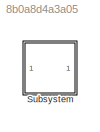
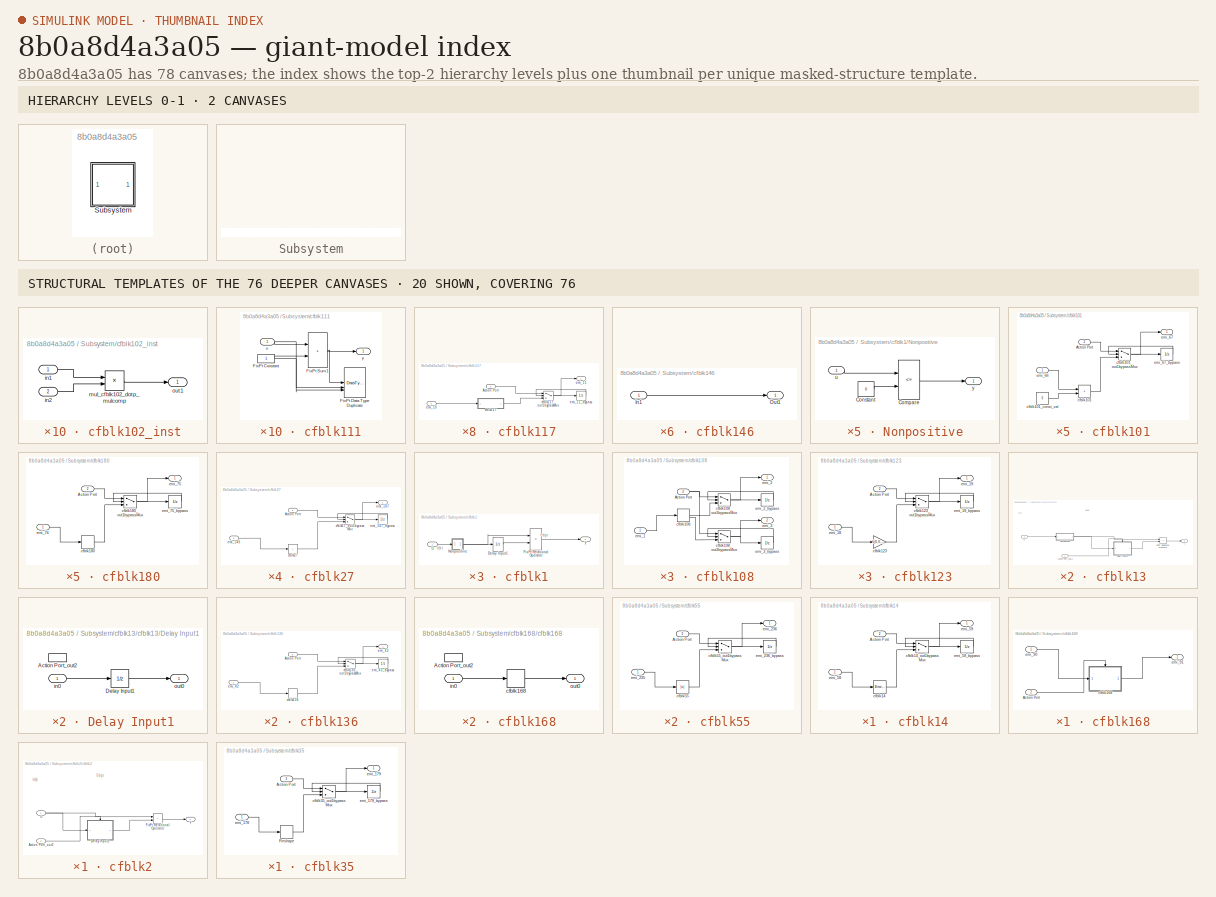
[diagram: thumbnail index - top-2 hierarchy levels (2 canvases) + 20 structural-template representatives of the remaining 76 canvases]
MODEL slx_8b0a8d4a3a05
KIND model
CONFIG AbsTol = auto
CONFIG EnableMultiTasking = off
CONFIG FixedStep = auto
CONFIG MaxStep = auto
CONFIG MinStep = auto
CONFIG RelTol = 1e-3
CONFIG SampleTimeConstraint = Unconstrained
CONFIG SolverName = VariableStepAuto
CONFIG StartTime = 0.0
CONFIG StopTime = 10.0
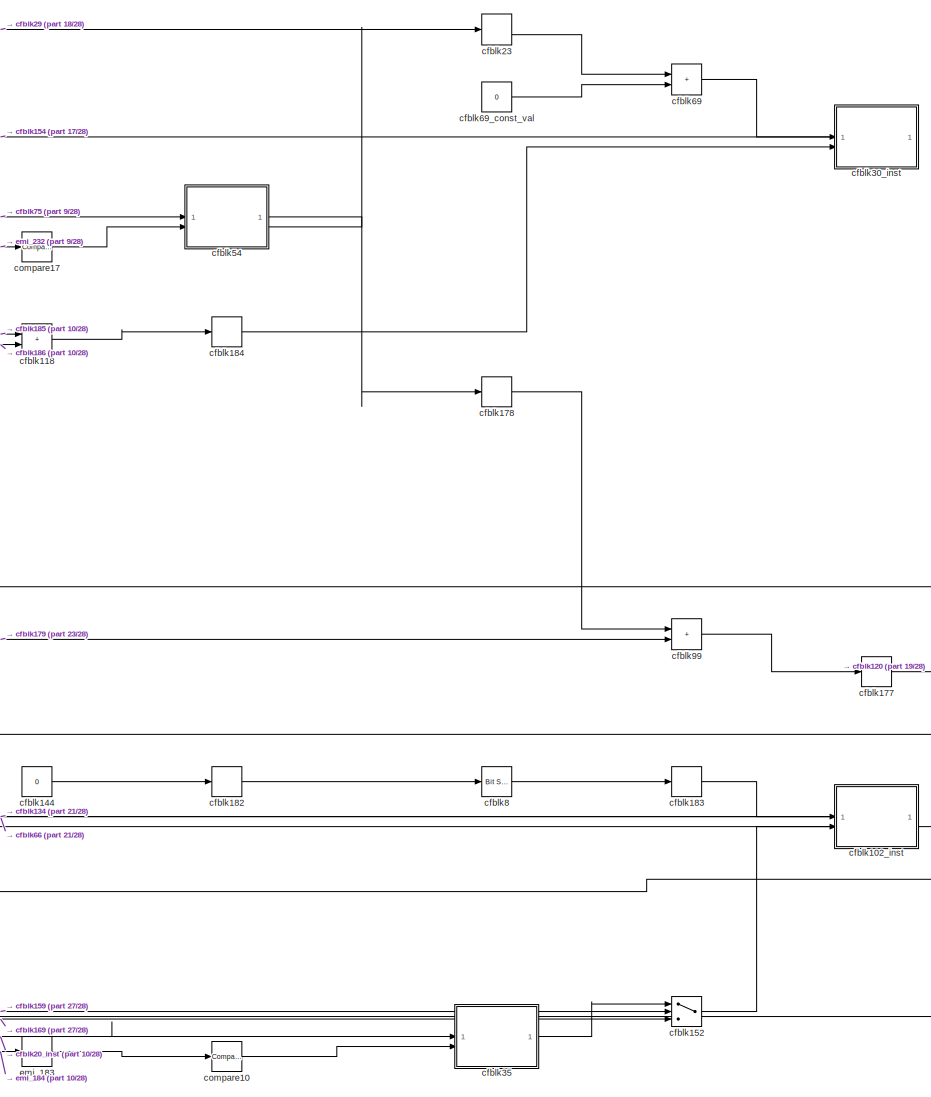
[diagram: Subsystem - part 1/28, right side, full height]
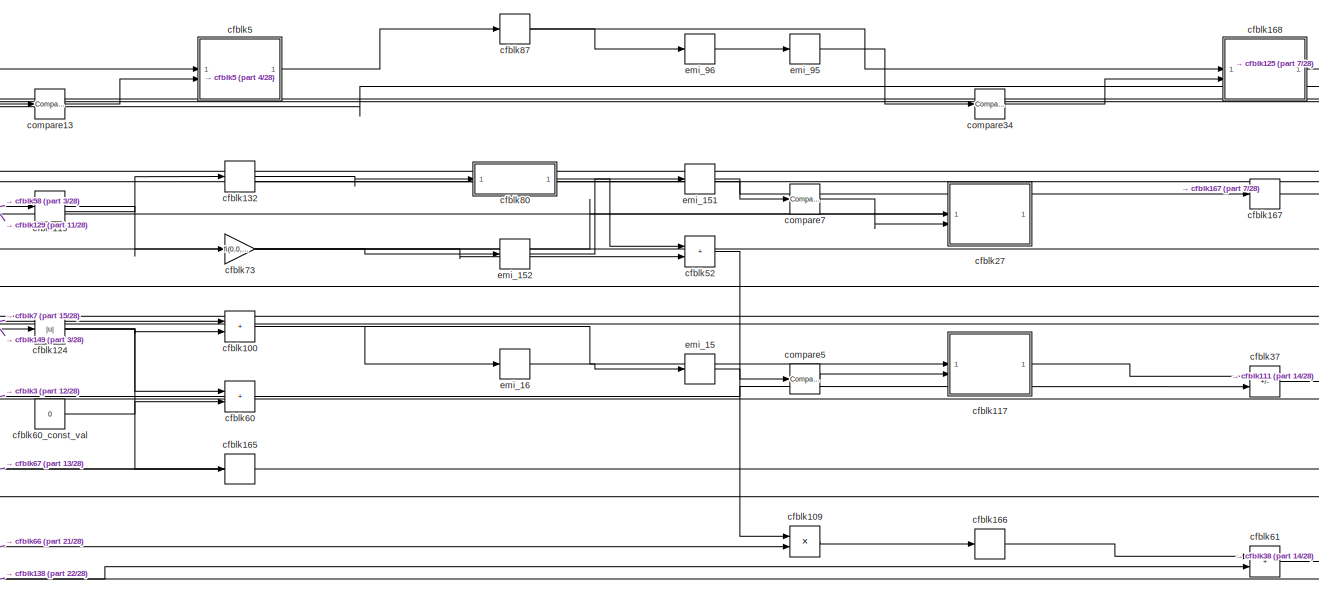
[diagram: Subsystem - part 2/28, middle right region]
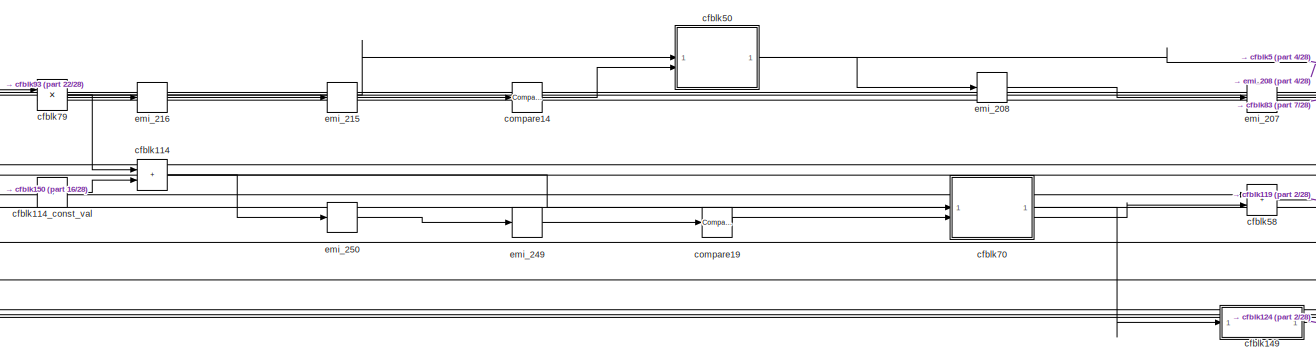
[diagram: Subsystem - part 3/28, top right region]
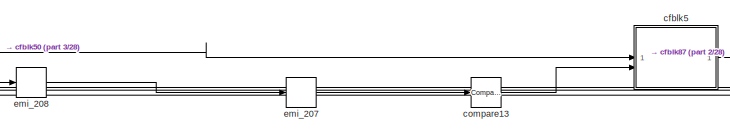
[diagram: Subsystem - part 4/28, top right region]
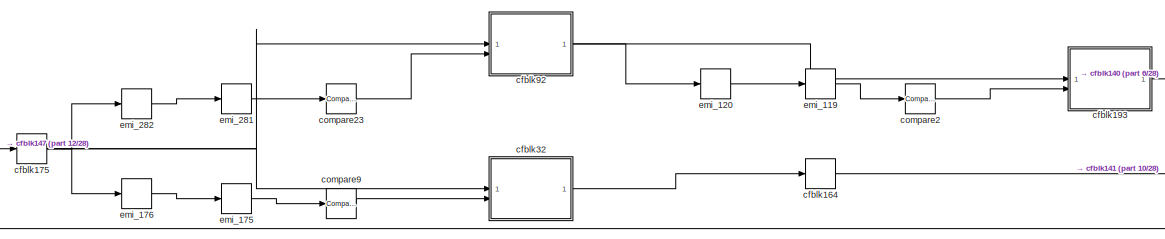
[diagram: Subsystem - part 5/28, top center region]
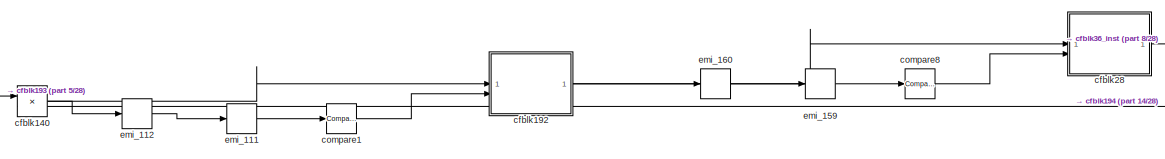
[diagram: Subsystem - part 6/28, top center region]
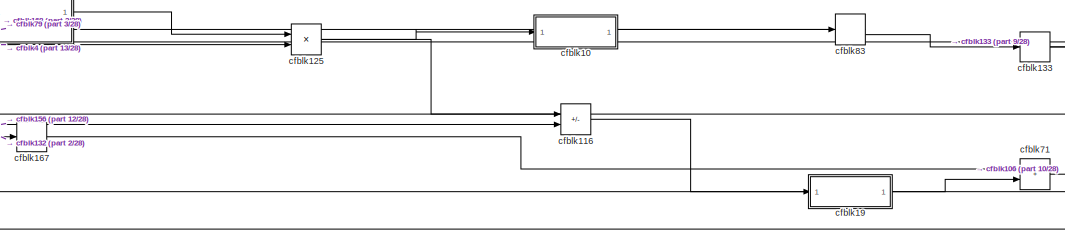
[diagram: Subsystem - part 7/28, top right region]
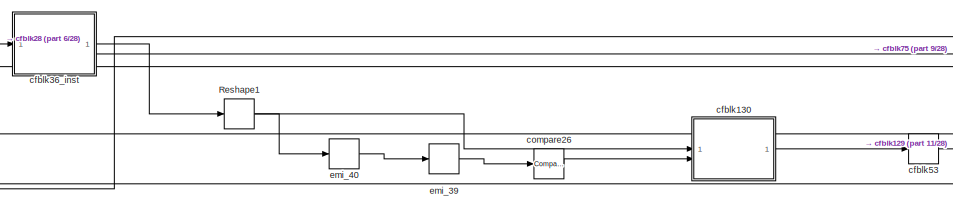
[diagram: Subsystem - part 8/28, top center region]
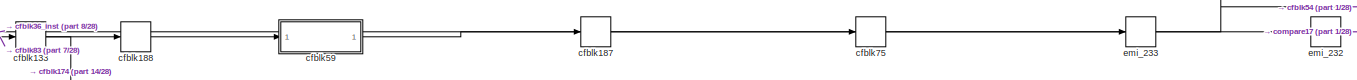
[diagram: Subsystem - part 9/28, top right region]
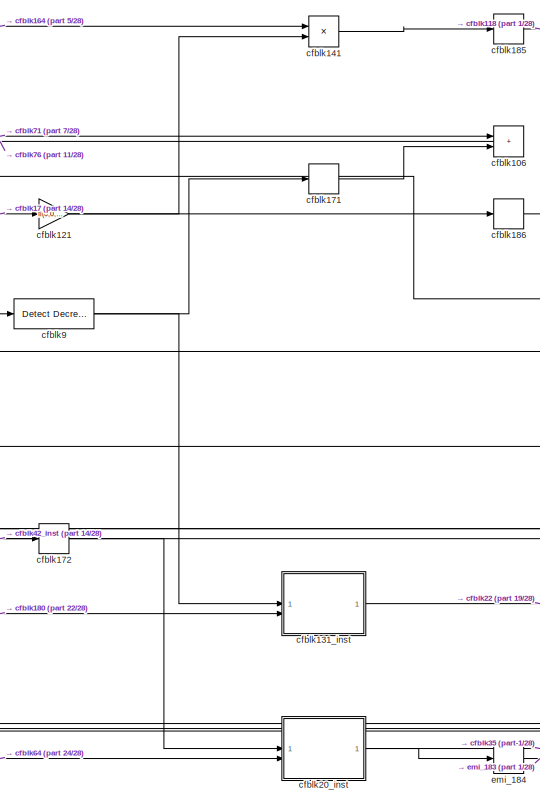
[diagram: Subsystem - part 10/28, middle right region]
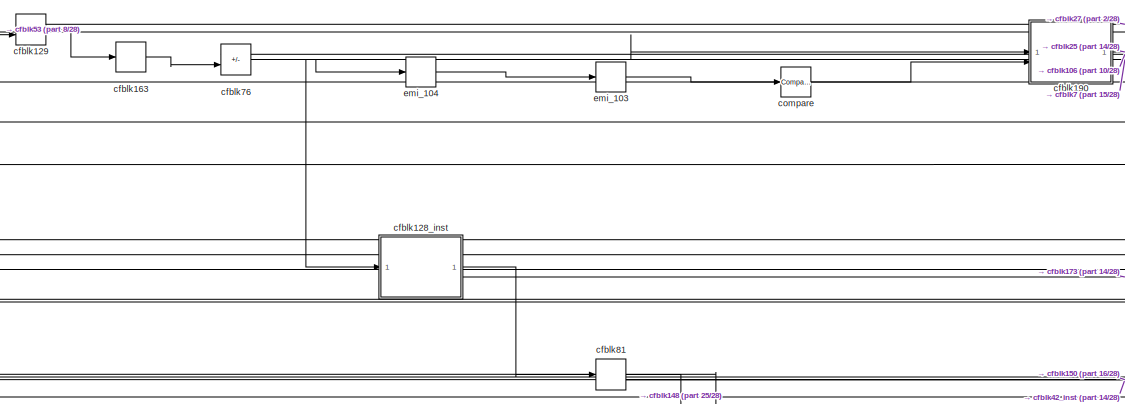
[diagram: Subsystem - part 11/28, central region]
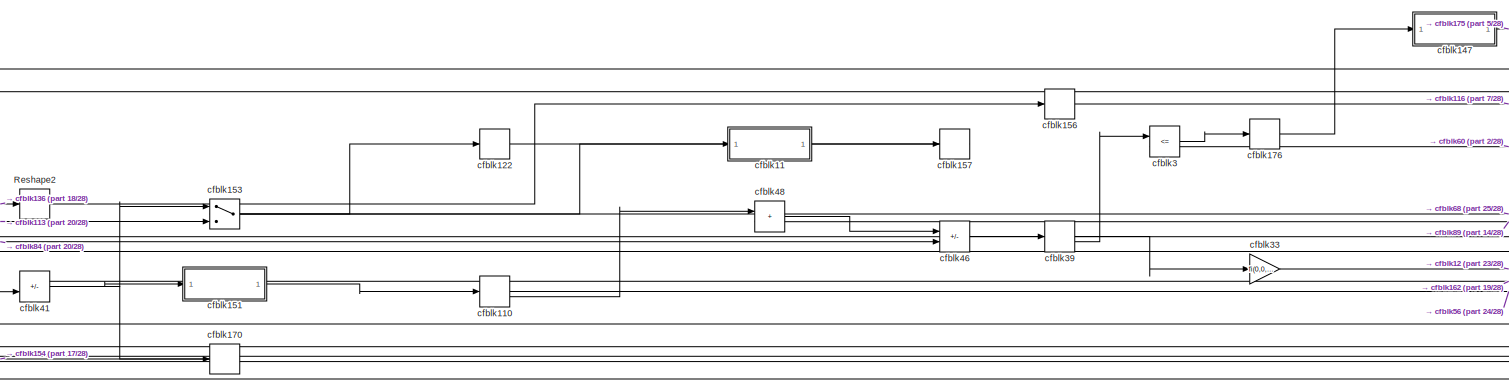
[diagram: Subsystem - part 12/28, middle left region]
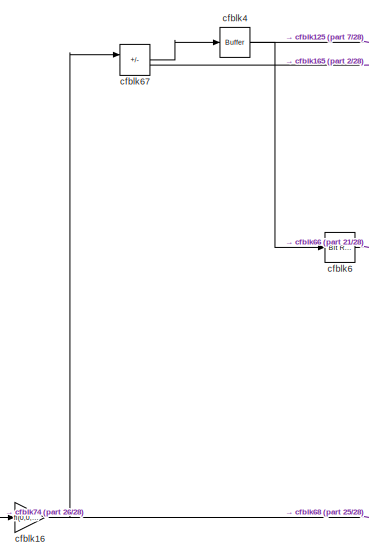
[diagram: Subsystem - part 13/28, middle left region]
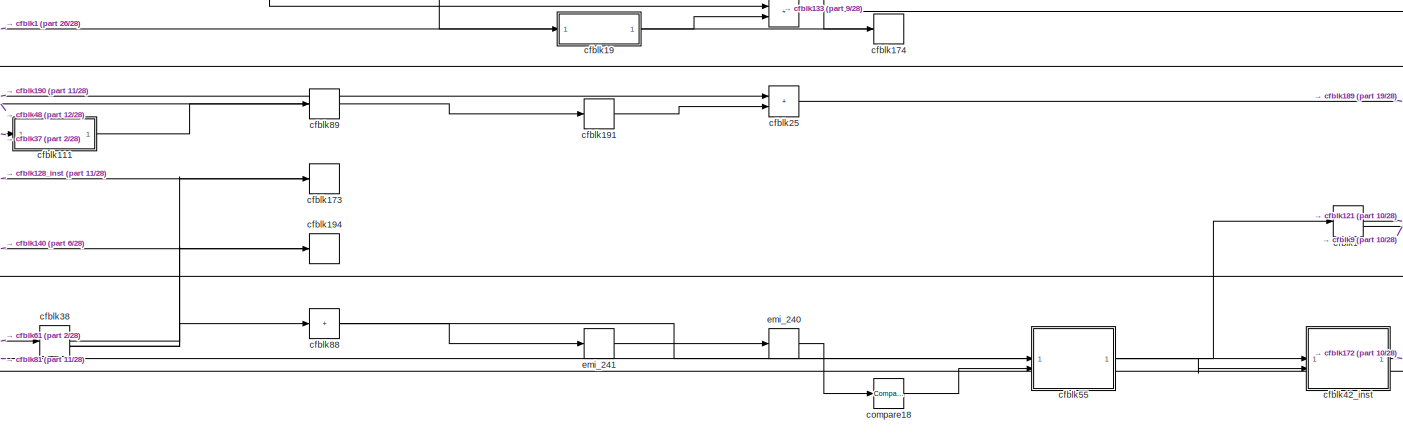
[diagram: Subsystem - part 14/28, middle right region]
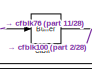
[diagram: Subsystem - part 15/28, middle right region]
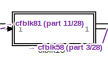
[diagram: Subsystem - part 16/28, middle right region]
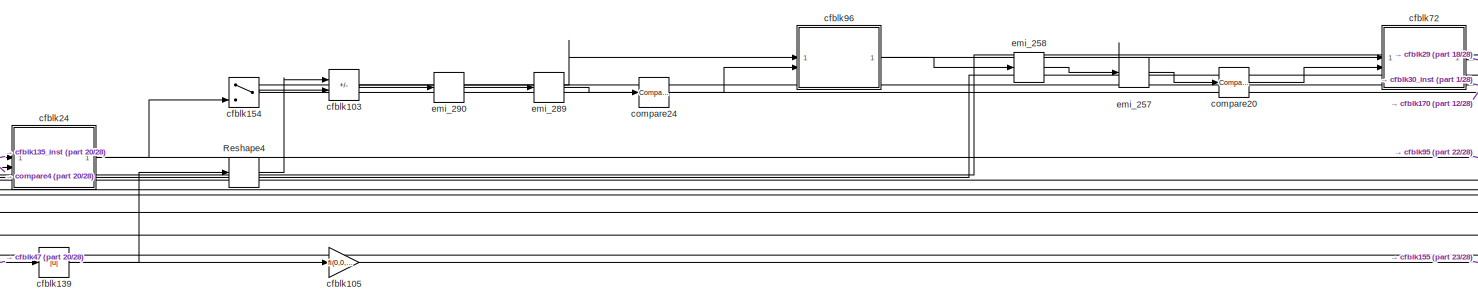
[diagram: Subsystem - part 17/28, middle left region]
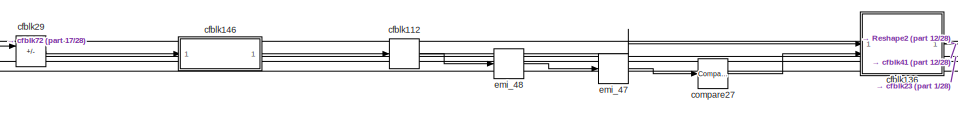
[diagram: Subsystem - part 18/28, middle left region]
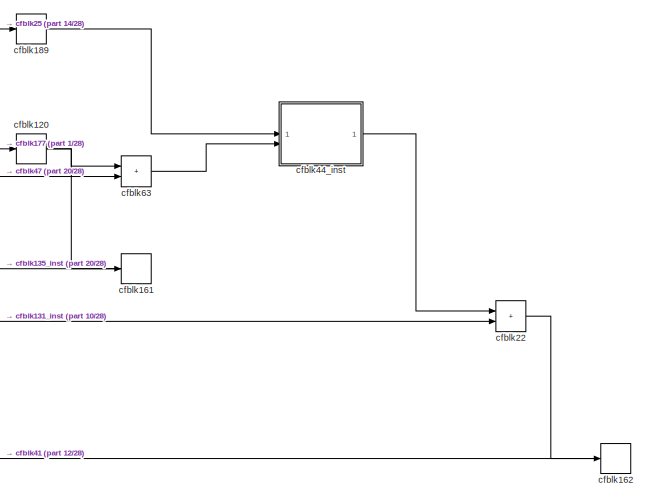
[diagram: Subsystem - part 19/28, bottom right region]
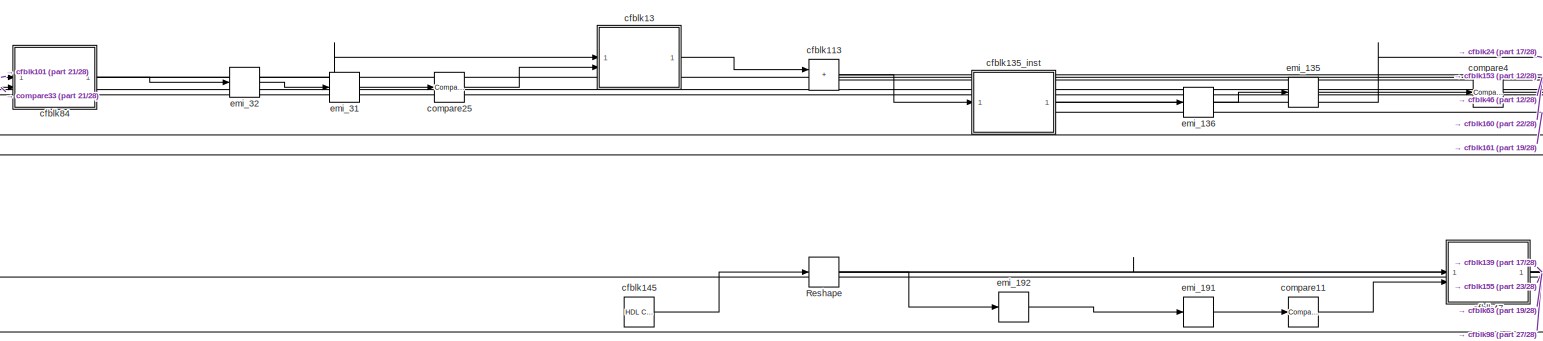
[diagram: Subsystem - part 20/28, middle left region]
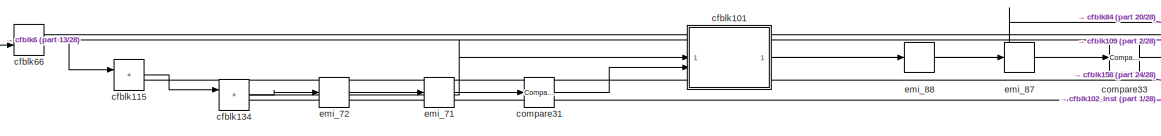
[diagram: Subsystem - part 21/28, middle left region]
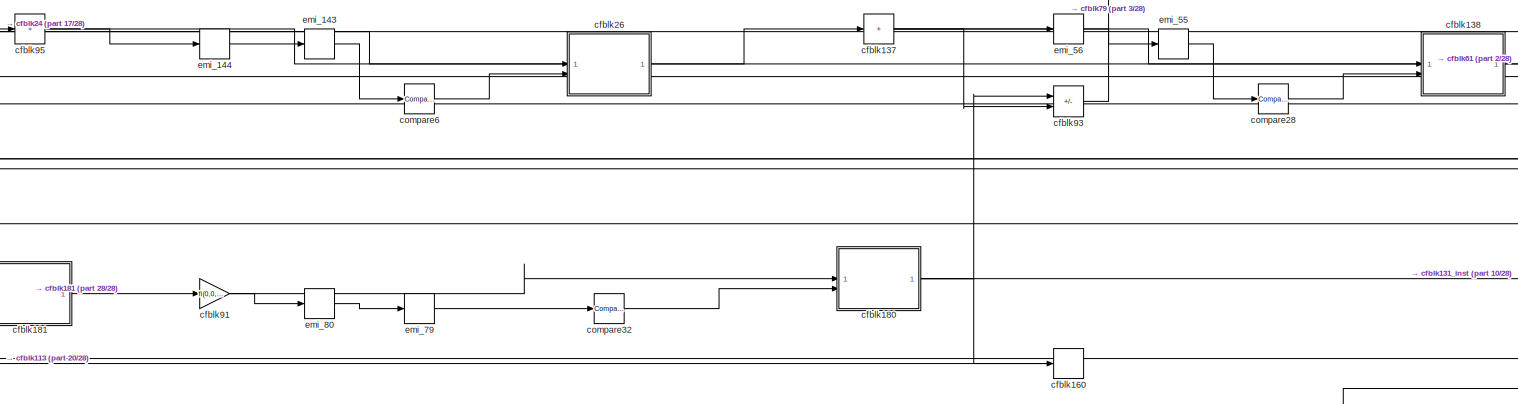
[diagram: Subsystem - part 22/28, bottom right region]
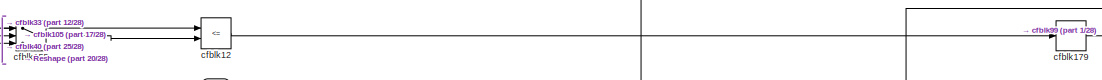
[diagram: Subsystem - part 23/28, central region]
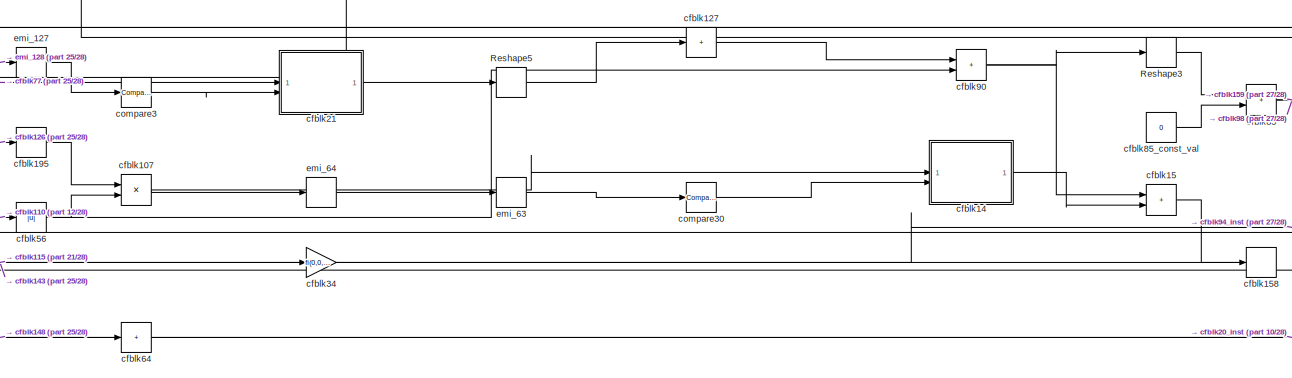
[diagram: Subsystem - part 24/28, bottom center region]
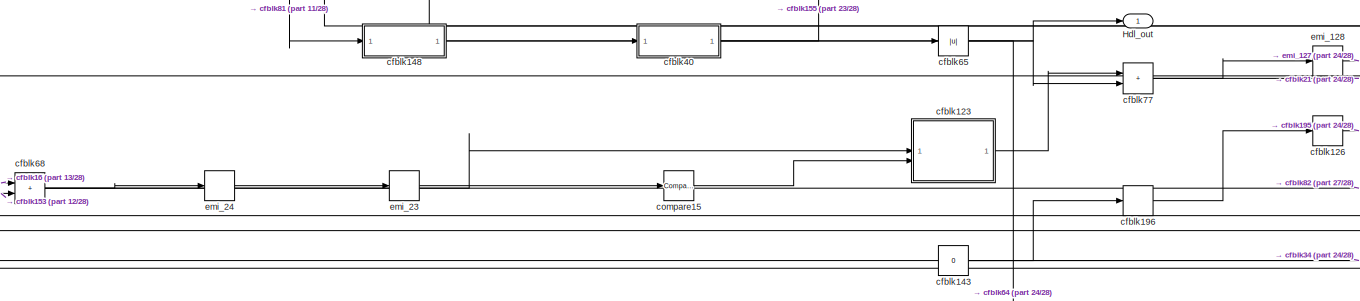
[diagram: Subsystem - part 25/28, bottom center region]
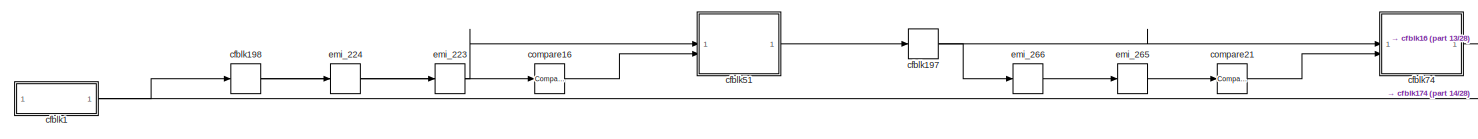
[diagram: Subsystem - part 26/28, bottom left region]
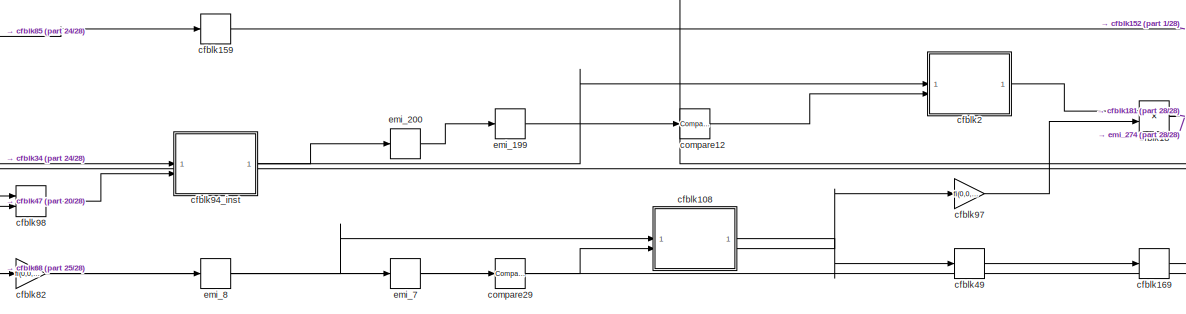
[diagram: Subsystem - part 27/28, bottom center region]
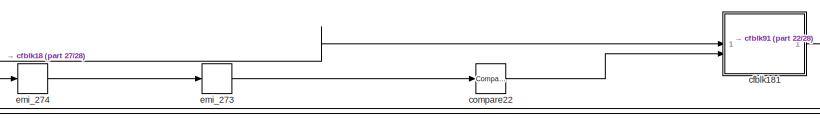
[diagram: Subsystem - part 28/28, bottom right region]
BLOCK [SubSystem] Subsystem
BLOCK [Outport] Subsystem/Hdl_out
  OutDataTypeStr = uint8
  SampleTime = 1
BLOCK [Reshape] Subsystem/Reshape
BLOCK [Reshape] Subsystem/Reshape1
BLOCK [Reshape] Subsystem/Reshape2
BLOCK [Reshape] Subsystem/Reshape3
BLOCK [Reshape] Subsystem/Reshape4
BLOCK [Reshape] Subsystem/Reshape5
BLOCK [SubSystem] Subsystem/cfblk1
BLOCK [UnitDelay] Subsystem/cfblk1/Delay Input1
  Description = Store in Global RAM
  DisableCoverage = on
  HasFrameUpgradeWarning = on
  InitialCondition = vinit
  SampleTime = -1
BLOCK [RelationalOperator] Subsystem/cfblk1/FixPt Relational Operator
  InputSameDT = off
  Operator = >
  OutDataTypeStr = fixdt(0, 8)
  ZeroCross = off
BLOCK [SubSystem] Subsystem/cfblk1/Nonpositive
BLOCK [RelationalOperator] Subsystem/cfblk1/Nonpositive/Compare
  Operator = <=
  OutDataTypeStr = boolean
  ZeroCross = off
BLOCK [Constant] Subsystem/cfblk1/Nonpositive/Constant
  DisableCoverage = on
  OutDataTypeStr = Inherit: Inherit via back propagation
  PreserveConstantTs = on
  SampleTime = -1
  Value = 0
BLOCK [Inport] Subsystem/cfblk1/Nonpositive/u
  OutDataTypeStr = uint8
  SampleTime = 1
BLOCK [Outport] Subsystem/cfblk1/Nonpositive/y
  SampleTime = 1
BLOCK [Inport] Subsystem/cfblk1/U
  OutDataTypeStr = uint8
  SampleTime = 1
BLOCK [Outport] Subsystem/cfblk1/Y
  SampleTime = 1
BLOCK [SubSystem] Subsystem/cfblk10
BLOCK [UnitDelay] Subsystem/cfblk10/Delay Input1
  Description = Store in Global RAM
  DisableCoverage = on
  HasFrameUpgradeWarning = on
  InitialCondition = vinit
  SampleTime = -1
BLOCK [RelationalOperator] Subsystem/cfblk10/FixPt Relational Operator
  InputSameDT = off
  Operator = >
  OutDataTypeStr = fixdt(0, 8)
  ZeroCross = off
BLOCK [SubSystem] Subsystem/cfblk10/Positive
BLOCK [RelationalOperator] Subsystem/cfblk10/Positive/Compare
  Operator = >
  OutDataTypeStr = boolean
  ZeroCross = off
BLOCK [Constant] Subsystem/cfblk10/Positive/Constant
  DisableCoverage = on
  OutDataTypeStr = Inherit: Inherit via back propagation
  PreserveConstantTs = on
  SampleTime = -1
  Value = 0
BLOCK [Inport] Subsystem/cfblk10/Positive/u
  OutDataTypeStr = uint8
  SampleTime = 1
BLOCK [Outport] Subsystem/cfblk10/Positive/y
  SampleTime = 1
BLOCK [Inport] Subsystem/cfblk10/U
  OutDataTypeStr = uint8
  SampleTime = 1
BLOCK [Outport] Subsystem/cfblk10/Y
  SampleTime = 1
BLOCK [Sum] Subsystem/cfblk100
  AccumDataTypeStr = uint8
  IconShape = rectangular
  OutDataTypeStr = uint8
  SampleTime = 1
BLOCK [SubSystem] Subsystem/cfblk101
BLOCK [Inport] Subsystem/cfblk101/Action Port
  OutDataTypeStr = boolean
  Port = 2
  SampleTime = 1
BLOCK [Sum] Subsystem/cfblk101/cfblk101
  AccumDataTypeStr = uint8
  IconShape = rectangular
  OutDataTypeStr = uint8
  RndMeth = Nearest
  SampleTime = 1
BLOCK [Constant] Subsystem/cfblk101/cfblk101_const_val
  OutDataTypeStr = uint8
  SampleTime = 1
  Value = 0
  VectorParams1D = off
BLOCK [MultiPortSwitch] Subsystem/cfblk101/cfblk101_out1bypassMux
  DataPortOrder = Zero-based contiguous
  InputSameDT = off
  Inputs = 2
  OutDataTypeStr = uint8
  SampleTime = 1
  SaturateOnIntegerOverflow = off
  zeroidx = on
BLOCK [Inport] Subsystem/cfblk101/emi_66
  OutDataTypeStr = uint8
  PortDimensions = 1
  SampleTime = 1
BLOCK [Outport] Subsystem/cfblk101/emi_67
  InitialOutput = 0
  SampleTime = 1
BLOCK [UnitDelay] Subsystem/cfblk101/emi_67_bypass
  InitialCondition = fi(0,0,8,0,"hex","00")
  SampleTime = 1
BLOCK [SubSystem] Subsystem/cfblk102_inst
BLOCK [Inport] Subsystem/cfblk102_inst/in1
  OutDataTypeStr = uint8
  SampleTime = 1
BLOCK [Inport] Subsystem/cfblk102_inst/in2
  OutDataTypeStr = uint8
  Port = 2
  SampleTime = 1
BLOCK [Product] Subsystem/cfblk102_inst/mul_cfblk102_dotp_mulcomp
  Inputs = **
  OutDataTypeStr = uint8
  SampleTime = 1
BLOCK [Outport] Subsystem/cfblk102_inst/out1
  OutDataTypeStr = uint8
  SampleTime = 1
BLOCK [Sum] Subsystem/cfblk103
  AccumDataTypeStr = uint8
  IconShape = rectangular
  Inputs = +-
  OutDataTypeStr = uint8
  SampleTime = 1
BLOCK [Gain] Subsystem/cfblk105
  Gain = fi(0,0,8,7,"hex","80")
  OutDataTypeStr = uint8
  ParamDataTypeStr = fixdt(0, 8, 7)
  SampleTime = 1
BLOCK [Sum] Subsystem/cfblk106
  AccumDataTypeStr = uint8
  IconShape = rectangular
  OutDataTypeStr = uint8
  SampleTime = 1
BLOCK [Product] Subsystem/cfblk107
  Inputs = */
  OutDataTypeStr = uint8
  RndMeth = Zero
  SampleTime = 1
  SaturateOnIntegerOverflow = on
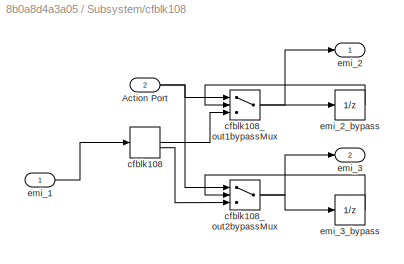
BLOCK [SubSystem] Subsystem/cfblk108
BLOCK [Inport] Subsystem/cfblk108/Action Port
  OutDataTypeStr = boolean
  Port = 2
  SampleTime = 1
BLOCK [ComplexToRealImag] Subsystem/cfblk108/cfblk108
  SampleTime = 1
BLOCK [MultiPortSwitch] Subsystem/cfblk108/cfblk108_out1bypassMux
  DataPortOrder = Zero-based contiguous
  InputSameDT = off
  Inputs = 2
  OutDataTypeStr = uint8
  SampleTime = 1
  SaturateOnIntegerOverflow = off
  zeroidx = on
BLOCK [MultiPortSwitch] Subsystem/cfblk108/cfblk108_out2bypassMux
  DataPortOrder = Zero-based contiguous
  InputSameDT = off
  Inputs = 2
  OutDataTypeStr = uint8
  SampleTime = 1
  SaturateOnIntegerOverflow = off
  zeroidx = on
BLOCK [Inport] Subsystem/cfblk108/emi_1
  OutDataTypeStr = uint8
  PortDimensions = 1
  SampleTime = 1
BLOCK [Outport] Subsystem/cfblk108/emi_2
  InitialOutput = 0
  SampleTime = 1
BLOCK [UnitDelay] Subsystem/cfblk108/emi_2_bypass
  InitialCondition = fi(0,0,8,0,"hex","00")
  SampleTime = 1
BLOCK [Outport] Subsystem/cfblk108/emi_3
  InitialOutput = 0
  Port = 2
  SampleTime = 1
BLOCK [UnitDelay] Subsystem/cfblk108/emi_3_bypass
  InitialCondition = fi(0,0,8,0,"hex","00")
  SampleTime = 1
BLOCK [Product] Subsystem/cfblk109
  Inputs = */
  OutDataTypeStr = uint8
  RndMeth = Zero
  SampleTime = 1
  SaturateOnIntegerOverflow = on
BLOCK [SubSystem] Subsystem/cfblk11
BLOCK [UnitDelay] Subsystem/cfblk11/Delay Input1
  Description = Store in Global RAM
  DisableCoverage = on
  HasFrameUpgradeWarning = on
  InitialCondition = vinit
  SampleTime = -1
BLOCK [RelationalOperator] Subsystem/cfblk11/FixPt Relational Operator
  InputSameDT = off
  Operator = >
  OutDataTypeStr = fixdt(0, 8)
  ZeroCross = off
BLOCK [SubSystem] Subsystem/cfblk11/Nonpositive
BLOCK [RelationalOperator] Subsystem/cfblk11/Nonpositive/Compare
  Operator = <=
  OutDataTypeStr = boolean
  ZeroCross = off
BLOCK [Constant] Subsystem/cfblk11/Nonpositive/Constant
  DisableCoverage = on
  OutDataTypeStr = Inherit: Inherit via back propagation
  PreserveConstantTs = on
  SampleTime = -1
  Value = 0
BLOCK [Inport] Subsystem/cfblk11/Nonpositive/u
  OutDataTypeStr = uint8
  SampleTime = 1
BLOCK [Outport] Subsystem/cfblk11/Nonpositive/y
  SampleTime = 1
BLOCK [Inport] Subsystem/cfblk11/U
  OutDataTypeStr = uint8
  SampleTime = 1
BLOCK [Outport] Subsystem/cfblk11/Y
  SampleTime = 1
BLOCK [ComplexToRealImag] Subsystem/cfblk110
  SampleTime = 1
BLOCK [SubSystem] Subsystem/cfblk111
BLOCK [Constant] Subsystem/cfblk111/FixPt Constant
  DisableCoverage = on
  OutDataTypeStr = Inherit: Inherit via back propagation
  SampleTime = -1
BLOCK [DataTypeDuplicate] Subsystem/cfblk111/FixPt Data Type Duplicate
  DisableCoverage = on
  NumInputPorts = 3
BLOCK [Sum] Subsystem/cfblk111/FixPt Sum1
  IconShape = rectangular
  InputSameDT = on
  LockScale = on
  OutDataTypeStr = Inherit: Inherit via back propagation
BLOCK [Inport] Subsystem/cfblk111/u
  OutDataTypeStr = uint8
  SampleTime = 1
BLOCK [Outport] Subsystem/cfblk111/y
  SampleTime = 1
BLOCK [Signum] Subsystem/cfblk112
  SampleTime = 1
BLOCK [Sum] Subsystem/cfblk113
  AccumDataTypeStr = uint8
  IconShape = rectangular
  OutDataTypeStr = uint8
  SampleTime = 1
BLOCK [Sum] Subsystem/cfblk114
  AccumDataTypeStr = uint8
  IconShape = rectangular
  OutDataTypeStr = uint8
  RndMeth = Nearest
  SampleTime = 1
BLOCK [Constant] Subsystem/cfblk114_const_val
  OutDataTypeStr = uint8
  SampleTime = 1
  Value = 0
  VectorParams1D = off
BLOCK [Sum] Subsystem/cfblk115
  AccumDataTypeStr = uint8
  IconShape = rectangular
  OutDataTypeStr = uint8
  SampleTime = 1
BLOCK [Sum] Subsystem/cfblk116
  AccumDataTypeStr = uint8
  IconShape = rectangular
  Inputs = +-
  OutDataTypeStr = uint8
  SampleTime = 1
BLOCK [SubSystem] Subsystem/cfblk117
BLOCK [Inport] Subsystem/cfblk117/Action Port
  OutDataTypeStr = boolean
  Port = 2
  SampleTime = 1
BLOCK [SubSystem] Subsystem/cfblk117/cfblk117
BLOCK [Constant] Subsystem/cfblk117/cfblk117/FixPt Constant
  DisableCoverage = on
  OutDataTypeStr = Inherit: Inherit via back propagation
  SampleTime = -1
BLOCK [DataTypeDuplicate] Subsystem/cfblk117/cfblk117/FixPt Data Type Duplicate
  DisableCoverage = on
  NumInputPorts = 3
BLOCK [Sum] Subsystem/cfblk117/cfblk117/FixPt Sum1
  IconShape = rectangular
  InputSameDT = on
  LockScale = on
  OutDataTypeStr = Inherit: Inherit via back propagation
BLOCK [Inport] Subsystem/cfblk117/cfblk117/u
  OutDataTypeStr = uint8
  SampleTime = 1
BLOCK [Outport] Subsystem/cfblk117/cfblk117/y
  InitialOutput = 0
  SampleTime = 1
BLOCK [MultiPortSwitch] Subsystem/cfblk117/cfblk117_out1bypassMux
  DataPortOrder = Zero-based contiguous
  InputSameDT = off
  Inputs = 2
  OutDataTypeStr = uint8
  SampleTime = 1
  SaturateOnIntegerOverflow = off
  zeroidx = on
BLOCK [Inport] Subsystem/cfblk117/emi_10
  OutDataTypeStr = uint8
  PortDimensions = 1
  SampleTime = 1
BLOCK [Outport] Subsystem/cfblk117/emi_11
  InitialOutput = 0
  SampleTime = 1
BLOCK [UnitDelay] Subsystem/cfblk117/emi_11_bypass
  InitialCondition = fi(0,0,8,0,"hex","00")
  SampleTime = 1
BLOCK [Sum] Subsystem/cfblk118
  AccumDataTypeStr = uint8
  IconShape = rectangular
  OutDataTypeStr = uint8
  SampleTime = 1
BLOCK [ComplexToRealImag] Subsystem/cfblk119
  SampleTime = 1
BLOCK [RelationalOperator] Subsystem/cfblk12
  InputSameDT = off
  Operator = <=
  OutDataTypeStr = fixdt(0,8,0)
  SampleTime = 1
BLOCK [Signum] Subsystem/cfblk120
  SampleTime = 1
BLOCK [Gain] Subsystem/cfblk121
  Gain = fi(0,0,8,7,"hex","80")
  OutDataTypeStr = uint8
  ParamDataTypeStr = fixdt(0, 8, 7)
  SampleTime = 1
BLOCK [MinMax] Subsystem/cfblk122
  OutDataTypeStr = uint8
BLOCK [SubSystem] Subsystem/cfblk123
BLOCK [Inport] Subsystem/cfblk123/Action Port
  OutDataTypeStr = boolean
  Port = 2
  SampleTime = 1
BLOCK [Gain] Subsystem/cfblk123/cfblk123
  Gain = fi(0,0,8,7,"hex","80")
  OutDataTypeStr = fixdt(0, 16, 7)
  ParamDataTypeStr = fixdt(0, 8, 7)
  SampleTime = 1
BLOCK [MultiPortSwitch] Subsystem/cfblk123/cfblk123_out1bypassMux
  DataPortOrder = Zero-based contiguous
  InputSameDT = off
  Inputs = 2
  OutDataTypeStr = fixdt(0, 16, 7)
  SampleTime = 1
  SaturateOnIntegerOverflow = off
  zeroidx = on
BLOCK [Inport] Subsystem/cfblk123/emi_18
  OutDataTypeStr = uint8
  PortDimensions = 1
  SampleTime = 1
BLOCK [Outport] Subsystem/cfblk123/emi_19
  InitialOutput = 0
  SampleTime = 1
BLOCK [UnitDelay] Subsystem/cfblk123/emi_19_bypass
  InitialCondition = fi(0,0,16,7,"hex","0000")
  SampleTime = 1
BLOCK [Abs] Subsystem/cfblk124
  OutDataTypeStr = uint8
  SampleTime = 1
  SaturateOnIntegerOverflow = off
BLOCK [Product] Subsystem/cfblk125
  Inputs = */
  OutDataTypeStr = uint8
  RndMeth = Zero
  SampleTime = 1
  SaturateOnIntegerOverflow = on
BLOCK [MinMax] Subsystem/cfblk126
  OutDataTypeStr = uint8
BLOCK [Sum] Subsystem/cfblk127
  IconShape = rectangular
  Inputs = +
  OutDataTypeStr = uint8
BLOCK [SubSystem] Subsystem/cfblk128_inst
BLOCK [Inport] Subsystem/cfblk128_inst/in1
  OutDataTypeStr = uint8
  SampleTime = 1
BLOCK [Inport] Subsystem/cfblk128_inst/in2
  OutDataTypeStr = uint8
  Port = 2
  SampleTime = 1
BLOCK [Product] Subsystem/cfblk128_inst/mul_cfblk128_dotp_mulcomp
  Inputs = **
  OutDataTypeStr = uint8
  SampleTime = 1
BLOCK [Outport] Subsystem/cfblk128_inst/out1
  OutDataTypeStr = uint8
  SampleTime = 1
BLOCK [Sum] Subsystem/cfblk129
  AccumDataTypeStr = uint8
  IconShape = rectangular
  OutDataTypeStr = uint8
  SampleTime = 1
BLOCK [SubSystem] Subsystem/cfblk13
BLOCK [Inport] Subsystem/cfblk13/Action Port
  OutDataTypeStr = boolean
  Port = 2
  SampleTime = 1
BLOCK [SubSystem] Subsystem/cfblk13/cfblk13
BLOCK [Inport] Subsystem/cfblk13/cfblk13/Action Port_out2
  OutDataTypeStr = boolean
  Port = 2
  SampleTime = 1
BLOCK [SubSystem] Subsystem/cfblk13/cfblk13/Delay Input1
  MinAlgLoopOccurrences = on
BLOCK [EnablePort] Subsystem/cfblk13/cfblk13/Delay Input1/Action Port_out2
  OutDataTypeStr = boolean
BLOCK [UnitDelay] Subsystem/cfblk13/cfblk13/Delay Input1/Delay Input1
  SampleTime = 1
BLOCK [Inport] Subsystem/cfblk13/cfblk13/Delay Input1/in0
  OutDataTypeStr = boolean
  SampleTime = 1
BLOCK [Outport] Subsystem/cfblk13/cfblk13/Delay Input1/out0
  InitialOutput = 0
  OutDataTypeStr = boolean
  SampleTime = 1
BLOCK [RelationalOperator] Subsystem/cfblk13/cfblk13/FixPt Relational Operator
  InputSameDT = off
  Operator = >
  OutDataTypeStr = fixdt(0,8,0)
  SampleTime = 1
BLOCK [SubSystem] Subsystem/cfblk13/cfblk13/Nonnegative
BLOCK [RelationalOperator] Subsystem/cfblk13/cfblk13/Nonnegative/Compare
  OutDataTypeStr = boolean
  SampleTime = 1
BLOCK [Constant] Subsystem/cfblk13/cfblk13/Nonnegative/Constant
  OutDataTypeStr = uint8
  SampleTime = 1
  Value = 0
BLOCK [Inport] Subsystem/cfblk13/cfblk13/Nonnegative/u
  OutDataTypeStr = uint8
  SampleTime = 1
BLOCK [Outport] Subsystem/cfblk13/cfblk13/Nonnegative/y
  InitialOutput = 0
  SampleTime = 1
BLOCK [Inport] Subsystem/cfblk13/cfblk13/U
  OutDataTypeStr = uint8
  SampleTime = 1
BLOCK [Outport] Subsystem/cfblk13/cfblk13/Y
  InitialOutput = 0
  SampleTime = 1
BLOCK [MultiPortSwitch] Subsystem/cfblk13/cfblk13_out1bypassMux
  DataPortOrder = Zero-based contiguous
  InputSameDT = off
  Inputs = 2
  OutDataTypeStr = uint8
  SampleTime = 1
  SaturateOnIntegerOverflow = off
  zeroidx = on
BLOCK [Inport] Subsystem/cfblk13/emi_26
  OutDataTypeStr = uint8
  PortDimensions = 1
  SampleTime = 1
BLOCK [Outport] Subsystem/cfblk13/emi_27
  InitialOutput = 0
  SampleTime = 1
BLOCK [UnitDelay] Subsystem/cfblk13/emi_27_bypass
  InitialCondition = fi(0,0,8,0,"hex","00")
  SampleTime = 1
BLOCK [SubSystem] Subsystem/cfblk130
BLOCK [Inport] Subsystem/cfblk130/Action Port
  OutDataTypeStr = boolean
  Port = 2
  SampleTime = 1
BLOCK [SubSystem] Subsystem/cfblk130/cfblk130
BLOCK [Constant] Subsystem/cfblk130/cfblk130/FixPt Constant
  DisableCoverage = on
  OutDataTypeStr = Inherit: Inherit via back propagation
  SampleTime = -1
BLOCK [DataTypeDuplicate] Subsystem/cfblk130/cfblk130/FixPt Data Type Duplicate
  DisableCoverage = on
  NumInputPorts = 3
BLOCK [Sum] Subsystem/cfblk130/cfblk130/FixPt Sum1
  IconShape = rectangular
  InputSameDT = on
  LockScale = on
  OutDataTypeStr = Inherit: Inherit via back propagation
BLOCK [Inport] Subsystem/cfblk130/cfblk130/u
  OutDataTypeStr = uint8
  SampleTime = 1
BLOCK [Outport] Subsystem/cfblk130/cfblk130/y
  InitialOutput = 0
  SampleTime = 1
BLOCK [MultiPortSwitch] Subsystem/cfblk130/cfblk130_out1bypassMux
  DataPortOrder = Zero-based contiguous
  InputSameDT = off
  Inputs = 2
  OutDataTypeStr = uint8
  SampleTime = 1
  SaturateOnIntegerOverflow = off
  zeroidx = on
BLOCK [Inport] Subsystem/cfblk130/emi_34
  OutDataTypeStr = uint8
  PortDimensions = 1
  SampleTime = 1
BLOCK [Outport] Subsystem/cfblk130/emi_35
  InitialOutput = 0
  SampleTime = 1
BLOCK [UnitDelay] Subsystem/cfblk130/emi_35_bypass
  InitialCondition = fi(0,0,8,0,"hex","00")
  SampleTime = 1
BLOCK [SubSystem] Subsystem/cfblk131_inst
BLOCK [Inport] Subsystem/cfblk131_inst/in1
  OutDataTypeStr = uint8
  SampleTime = 1
BLOCK [Inport] Subsystem/cfblk131_inst/in2
  OutDataTypeStr = uint8
  Port = 2
  SampleTime = 1
BLOCK [Product] Subsystem/cfblk131_inst/mul_cfblk131_dotp_mulcomp
  Inputs = **
  OutDataTypeStr = uint8
  SampleTime = 1
BLOCK [Outport] Subsystem/cfblk131_inst/out1
  OutDataTypeStr = uint8
  SampleTime = 1
BLOCK [ComplexToRealImag] Subsystem/cfblk132
  SampleTime = 1
BLOCK [Signum] Subsystem/cfblk133
  SampleTime = 1
BLOCK [Sum] Subsystem/cfblk134
  AccumDataTypeStr = uint8
  IconShape = rectangular
  OutDataTypeStr = uint8
  SampleTime = 1
BLOCK [SubSystem] Subsystem/cfblk135_inst
BLOCK [Inport] Subsystem/cfblk135_inst/in1
  OutDataTypeStr = uint8
  SampleTime = 1
BLOCK [Inport] Subsystem/cfblk135_inst/in2
  OutDataTypeStr = uint8
  Port = 2
  SampleTime = 1
BLOCK [Product] Subsystem/cfblk135_inst/mul_cfblk135_dotp_mulcomp
  Inputs = **
  OutDataTypeStr = uint8
  SampleTime = 1
BLOCK [Outport] Subsystem/cfblk135_inst/out1
  OutDataTypeStr = uint8
  SampleTime = 1
BLOCK [SubSystem] Subsystem/cfblk136
BLOCK [Inport] Subsystem/cfblk136/Action Port
  OutDataTypeStr = boolean
  Port = 2
  SampleTime = 1
BLOCK [MinMax] Subsystem/cfblk136/cfblk136
BLOCK [MultiPortSwitch] Subsystem/cfblk136/cfblk136_out1bypassMux
  DataPortOrder = Zero-based contiguous
  InputSameDT = off
  Inputs = 2
  OutDataTypeStr = uint8
  SampleTime = 1
  SaturateOnIntegerOverflow = off
  zeroidx = on
BLOCK [Inport] Subsystem/cfblk136/emi_42
  OutDataTypeStr = uint8
  PortDimensions = 1
  SampleTime = 1
BLOCK [Outport] Subsystem/cfblk136/emi_43
  InitialOutput = 0
  SampleTime = 1
BLOCK [UnitDelay] Subsystem/cfblk136/emi_43_bypass
  InitialCondition = fi(0,0,8,0,"hex","00")
  SampleTime = 1
BLOCK [Sum] Subsystem/cfblk137
  IconShape = rectangular
  Inputs = +
  OutDataTypeStr = uint8
BLOCK [SubSystem] Subsystem/cfblk138
BLOCK [Inport] Subsystem/cfblk138/Action Port
  OutDataTypeStr = boolean
  Port = 2
  SampleTime = 1
BLOCK [Sum] Subsystem/cfblk138/cfblk138
  AccumDataTypeStr = uint8
  IconShape = rectangular
  OutDataTypeStr = uint8
  RndMeth = Nearest
  SampleTime = 1
BLOCK [Constant] Subsystem/cfblk138/cfblk138_const_val
  OutDataTypeStr = uint8
  SampleTime = 1
  Value = 0
  VectorParams1D = off
BLOCK [MultiPortSwitch] Subsystem/cfblk138/cfblk138_out1bypassMux
  DataPortOrder = Zero-based contiguous
  InputSameDT = off
  Inputs = 2
  OutDataTypeStr = uint8
  SampleTime = 1
  SaturateOnIntegerOverflow = off
  zeroidx = on
BLOCK [Inport] Subsystem/cfblk138/emi_50
  OutDataTypeStr = uint8
  PortDimensions = 1
  SampleTime = 1
BLOCK [Outport] Subsystem/cfblk138/emi_51
  InitialOutput = 0
  SampleTime = 1
BLOCK [UnitDelay] Subsystem/cfblk138/emi_51_bypass
  InitialCondition = fi(0,0,8,0,"hex","00")
  SampleTime = 1
BLOCK [Abs] Subsystem/cfblk139
  OutDataTypeStr = uint8
  SampleTime = 1
  SaturateOnIntegerOverflow = off
BLOCK [SubSystem] Subsystem/cfblk14
BLOCK [Inport] Subsystem/cfblk14/Action Port
  OutDataTypeStr = boolean
  Port = 2
  SampleTime = 1
BLOCK [Reference] Subsystem/cfblk14/cfblk14  REF=simulink/Logic and Bit
Operations/Bitwise
Operator
  SourceBlock = simulink/Logic and Bit\nOperations/Bitwise\nOperator
  SourceType = Bitwise Operator
BLOCK [MultiPortSwitch] Subsystem/cfblk14/cfblk14_out1bypassMux
  DataPortOrder = Zero-based contiguous
  InputSameDT = off
  Inputs = 2
  OutDataTypeStr = uint8
  SampleTime = 1
  SaturateOnIntegerOverflow = off
  zeroidx = on
BLOCK [Inport] Subsystem/cfblk14/emi_58
  OutDataTypeStr = uint8
  PortDimensions = 1
  SampleTime = 1
BLOCK [Outport] Subsystem/cfblk14/emi_59
  InitialOutput = 0
  SampleTime = 1
BLOCK [UnitDelay] Subsystem/cfblk14/emi_59_bypass
  InitialCondition = fi(0,0,8,0,"hex","00")
  SampleTime = 1
BLOCK [Product] Subsystem/cfblk140
  Inputs = */
  OutDataTypeStr = uint8
  RndMeth = Zero
  SampleTime = 1
  SaturateOnIntegerOverflow = on
BLOCK [Product] Subsystem/cfblk141
  Inputs = */
  OutDataTypeStr = uint8
  RndMeth = Zero
  SampleTime = 1
  SaturateOnIntegerOverflow = on
BLOCK [Constant] Subsystem/cfblk143
  OutDataTypeStr = uint8
  SampleTime = 1
  Value = 0
  VectorParams1D = off
BLOCK [Constant] Subsystem/cfblk144
  OutDataTypeStr = uint8
  SampleTime = 1
  Value = 0
  VectorParams1D = off
BLOCK [Reference] Subsystem/cfblk145  REF=hdlsllib/Sources/HDL Counter
  SourceBlock = hdlsllib/Sources/HDL Counter
  SourceType = HDL Counter
BLOCK [SubSystem] Subsystem/cfblk146
BLOCK [Inport] Subsystem/cfblk146/In1
  OutDataTypeStr = uint8
  PortDimensions = 1
  SampleTime = 1
BLOCK [Outport] Subsystem/cfblk146/Out1
  InitialOutput = [0]
  SampleTime = 1
BLOCK [SubSystem] Subsystem/cfblk147
BLOCK [Inport] Subsystem/cfblk147/In1
  OutDataTypeStr = uint8
  PortDimensions = 1
  SampleTime = 1
BLOCK [Outport] Subsystem/cfblk147/Out1
  InitialOutput = [0]
  SampleTime = 1
BLOCK [SubSystem] Subsystem/cfblk148
BLOCK [Inport] Subsystem/cfblk148/In1
  OutDataTypeStr = uint8
  PortDimensions = 1
  SampleTime = 1
BLOCK [Outport] Subsystem/cfblk148/Out1
  InitialOutput = [0]
  SampleTime = 1
BLOCK [SubSystem] Subsystem/cfblk149
BLOCK [Inport] Subsystem/cfblk149/In1
  OutDataTypeStr = uint8
  PortDimensions = 1
  SampleTime = 1
BLOCK [Outport] Subsystem/cfblk149/Out1
  InitialOutput = [0]
  SampleTime = 1
BLOCK [Sum] Subsystem/cfblk15
  AccumDataTypeStr = uint8
  IconShape = rectangular
  OutDataTypeStr = uint8
  SampleTime = 1
BLOCK [SubSystem] Subsystem/cfblk150
BLOCK [Inport] Subsystem/cfblk150/In1
  OutDataTypeStr = uint8
  PortDimensions = 1
  SampleTime = 1
BLOCK [Outport] Subsystem/cfblk150/Out1
  InitialOutput = [0]
  SampleTime = 1
BLOCK [SubSystem] Subsystem/cfblk151
BLOCK [Inport] Subsystem/cfblk151/In1
  OutDataTypeStr = uint8
  PortDimensions = 1
  SampleTime = 1
BLOCK [Outport] Subsystem/cfblk151/Out1
  InitialOutput = [0]
  SampleTime = 1
BLOCK [Switch] Subsystem/cfblk152
  InputSameDT = off
  OutDataTypeStr = uint8
  SampleTime = 1
  SaturateOnIntegerOverflow = off
  Threshold = double(0)
BLOCK [Switch] Subsystem/cfblk153
  InputSameDT = off
  OutDataTypeStr = uint8
  SampleTime = 1
  SaturateOnIntegerOverflow = off
  Threshold = double(0)
BLOCK [Switch] Subsystem/cfblk154
  InputSameDT = off
  OutDataTypeStr = uint8
  SampleTime = 1
  SaturateOnIntegerOverflow = off
  Threshold = double(0)
BLOCK [Switch] Subsystem/cfblk155
  InputSameDT = off
  OutDataTypeStr = uint8
  SampleTime = 1
  SaturateOnIntegerOverflow = off
  Threshold = double(0)
BLOCK [Delay] Subsystem/cfblk156
  DelayLength = double(2)
  InitialCondition = 0
  InputPortMap = u0
  SampleTime = 1
BLOCK [Delay] Subsystem/cfblk157
  DelayLength = double(2)
  InitialCondition = 0
  InputPortMap = u0
  SampleTime = 1
BLOCK [Delay] Subsystem/cfblk158
  DelayLength = double(2)
  InitialCondition = 0
  InputPortMap = u0
  SampleTime = 1
BLOCK [Delay] Subsystem/cfblk159
  DelayLength = double(2)
  InitialCondition = 0
  InputPortMap = u0
  SampleTime = 1
BLOCK [Gain] Subsystem/cfblk16
  Gain = fi(0,0,8,7,"hex","80")
  OutDataTypeStr = uint8
  ParamDataTypeStr = fixdt(0, 8, 7)
  SampleTime = 1
BLOCK [Delay] Subsystem/cfblk160
  DelayLength = double(2)
  InitialCondition = 0
  InputPortMap = u0
  SampleTime = 1
BLOCK [Delay] Subsystem/cfblk161
  DelayLength = double(2)
  InitialCondition = 0
  InputPortMap = u0
  SampleTime = 1
BLOCK [Delay] Subsystem/cfblk162
  DelayLength = double(2)
  InitialCondition = 0
  InputPortMap = u0
  SampleTime = 1
BLOCK [Delay] Subsystem/cfblk163
  DelayLength = double(2)
  InitialCondition = 0
  InputPortMap = u0
  SampleTime = 1
BLOCK [Delay] Subsystem/cfblk164
  DelayLength = double(2)
  InitialCondition = 0
  InputPortMap = u0
  SampleTime = 1
BLOCK [Delay] Subsystem/cfblk165
  DelayLength = double(2)
  InitialCondition = 0
  InputPortMap = u0
  SampleTime = 1
BLOCK [Delay] Subsystem/cfblk166
  DelayLength = double(2)
  InitialCondition = 0
  InputPortMap = u0
  SampleTime = 1
BLOCK [Delay] Subsystem/cfblk167
  DelayLength = double(2)
  InitialCondition = 0
  InputPortMap = u0
  SampleTime = 1
BLOCK [SubSystem] Subsystem/cfblk168
BLOCK [Inport] Subsystem/cfblk168/Action Port
  OutDataTypeStr = boolean
  Port = 2
  SampleTime = 1
BLOCK [SubSystem] Subsystem/cfblk168/cfblk168
  MinAlgLoopOccurrences = on
BLOCK [EnablePort] Subsystem/cfblk168/cfblk168/Action Port_out2
  OutDataTypeStr = boolean
BLOCK [Delay] Subsystem/cfblk168/cfblk168/cfblk168
  DelayLength = double(2)
  InitialCondition = 0
  InputPortMap = u0
BLOCK [Inport] Subsystem/cfblk168/cfblk168/in0
  OutDataTypeStr = uint8
  SampleTime = 1
BLOCK [Outport] Subsystem/cfblk168/cfblk168/out0
  InitialOutput = 0
  OutDataTypeStr = uint8
  SampleTime = 1
BLOCK [Inport] Subsystem/cfblk168/emi_90
  OutDataTypeStr = uint8
  PortDimensions = 1
  SampleTime = 1
BLOCK [Outport] Subsystem/cfblk168/emi_91
  InitialOutput = 0
  SampleTime = 1
BLOCK [Delay] Subsystem/cfblk169
  DelayLength = double(2)
  InitialCondition = 0
  InputPortMap = u0
  SampleTime = 1
BLOCK [ComplexToRealImag] Subsystem/cfblk17
  SampleTime = 1
BLOCK [Delay] Subsystem/cfblk170
  DelayLength = double(2)
  InitialCondition = 0
  InputPortMap = u0
  SampleTime = 1
BLOCK [Delay] Subsystem/cfblk171
  DelayLength = double(2)
  InitialCondition = 0
  InputPortMap = u0
  SampleTime = 1
BLOCK [Delay] Subsystem/cfblk172
  DelayLength = double(2)
  InitialCondition = 0
  InputPortMap = u0
  SampleTime = 1
BLOCK [Delay] Subsystem/cfblk173
  DelayLength = double(2)
  InitialCondition = 0
  InputPortMap = u0
  SampleTime = 1
BLOCK [Delay] Subsystem/cfblk174
  DelayLength = double(2)
  InitialCondition = 0
  InputPortMap = u0
  SampleTime = 1
BLOCK [DataTypeConversion] Subsystem/cfblk175
  OutDataTypeStr = fixdt(0,8,0)
BLOCK [DataTypeConversion] Subsystem/cfblk176
  OutDataTypeStr = fixdt(0,8,0)
BLOCK [DataTypeConversion] Subsystem/cfblk177
  OutDataTypeStr = fixdt(0,8,0)
BLOCK [DataTypeConversion] Subsystem/cfblk178
  OutDataTypeStr = fixdt(0,8,0)
BLOCK [DataTypeConversion] Subsystem/cfblk179
  OutDataTypeStr = fixdt(0,8,0)
BLOCK [Product] Subsystem/cfblk18
  Inputs = */
  OutDataTypeStr = uint8
  RndMeth = Zero
  SampleTime = 1
  SaturateOnIntegerOverflow = on
BLOCK [SubSystem] Subsystem/cfblk180
BLOCK [Inport] Subsystem/cfblk180/Action Port
  OutDataTypeStr = boolean
  Port = 2
  SampleTime = 1
BLOCK [DataTypeConversion] Subsystem/cfblk180/cfblk180
  OutDataTypeStr = fixdt(0,8,0)
BLOCK [MultiPortSwitch] Subsystem/cfblk180/cfblk180_out1bypassMux
  DataPortOrder = Zero-based contiguous
  InputSameDT = off
  Inputs = 2
  OutDataTypeStr = uint8
  SampleTime = 1
  SaturateOnIntegerOverflow = off
  zeroidx = on
BLOCK [Inport] Subsystem/cfblk180/emi_74
  OutDataTypeStr = uint8
  PortDimensions = 1
  SampleTime = 1
BLOCK [Outport] Subsystem/cfblk180/emi_75
  InitialOutput = 0
  SampleTime = 1
BLOCK [UnitDelay] Subsystem/cfblk180/emi_75_bypass
  InitialCondition = fi(0,0,8,0,"hex","00")
  SampleTime = 1
BLOCK [SubSystem] Subsystem/cfblk181
BLOCK [Inport] Subsystem/cfblk181/Action Port
  OutDataTypeStr = boolean
  Port = 2
  SampleTime = 1
BLOCK [DataTypeConversion] Subsystem/cfblk181/cfblk181
  OutDataTypeStr = fixdt(0,8,0)
BLOCK [MultiPortSwitch] Subsystem/cfblk181/cfblk181_out1bypassMux
  DataPortOrder = Zero-based contiguous
  InputSameDT = off
  Inputs = 2
  OutDataTypeStr = uint8
  SampleTime = 1
  SaturateOnIntegerOverflow = off
  zeroidx = on
BLOCK [Inport] Subsystem/cfblk181/emi_268
  OutDataTypeStr = uint8
  PortDimensions = 1
  SampleTime = 1
BLOCK [Outport] Subsystem/cfblk181/emi_269
  InitialOutput = 0
  SampleTime = 1
BLOCK [UnitDelay] Subsystem/cfblk181/emi_269_bypass
  InitialCondition = fi(0,0,8,0,"hex","00")
  SampleTime = 1
BLOCK [DataTypeConversion] Subsystem/cfblk182
  OutDataTypeStr = fixdt(0,8,0)
BLOCK [DataTypeConversion] Subsystem/cfblk183
  OutDataTypeStr = fixdt(0,8,0)
BLOCK [DataTypeConversion] Subsystem/cfblk184
  OutDataTypeStr = fixdt(0,8,0)
BLOCK [DataTypeConversion] Subsystem/cfblk185
  OutDataTypeStr = fixdt(0,8,0)
BLOCK [DataTypeConversion] Subsystem/cfblk186
  OutDataTypeStr = fixdt(0,8,0)
BLOCK [DataTypeConversion] Subsystem/cfblk187
  OutDataTypeStr = fixdt(0,8,0)
BLOCK [DataTypeConversion] Subsystem/cfblk188
  OutDataTypeStr = fixdt(0,8,0)
BLOCK [DataTypeConversion] Subsystem/cfblk189
  OutDataTypeStr = fixdt(0,8,0)
BLOCK [SubSystem] Subsystem/cfblk19
BLOCK [Constant] Subsystem/cfblk19/FixPt Constant
  DisableCoverage = on
  OutDataTypeStr = Inherit: Inherit via back propagation
  SampleTime = -1
BLOCK [DataTypeDuplicate] Subsystem/cfblk19/FixPt Data Type Duplicate
  DisableCoverage = on
  NumInputPorts = 3
BLOCK [Sum] Subsystem/cfblk19/FixPt Sum1
  IconShape = rectangular
  InputSameDT = on
  LockScale = on
  OutDataTypeStr = Inherit: Inherit via back propagation
BLOCK [Inport] Subsystem/cfblk19/u
  OutDataTypeStr = uint8
  SampleTime = 1
BLOCK [Outport] Subsystem/cfblk19/y
  SampleTime = 1
BLOCK [SubSystem] Subsystem/cfblk190
BLOCK [Inport] Subsystem/cfblk190/Action Port
  OutDataTypeStr = boolean
  Port = 2
  SampleTime = 1
BLOCK [DataTypeConversion] Subsystem/cfblk190/cfblk190
  OutDataTypeStr = fixdt(0,8,0)
BLOCK [MultiPortSwitch] Subsystem/cfblk190/cfblk190_out1bypassMux
  DataPortOrder = Zero-based contiguous
  InputSameDT = off
  Inputs = 2
  OutDataTypeStr = uint8
  SampleTime = 1
  SaturateOnIntegerOverflow = off
  zeroidx = on
BLOCK [Inport] Subsystem/cfblk190/emi_98
  OutDataTypeStr = uint8
  PortDimensions = 1
  SampleTime = 1
BLOCK [Outport] Subsystem/cfblk190/emi_99
  InitialOutput = 0
  SampleTime = 1
BLOCK [UnitDelay] Subsystem/cfblk190/emi_99_bypass
  InitialCondition = fi(0,0,8,0,"hex","00")
  SampleTime = 1
BLOCK [DataTypeConversion] Subsystem/cfblk191
  OutDataTypeStr = fixdt(0,8,0)
BLOCK [SubSystem] Subsystem/cfblk192
BLOCK [Inport] Subsystem/cfblk192/Action Port
  OutDataTypeStr = boolean
  Port = 2
  SampleTime = 1
BLOCK [DataTypeConversion] Subsystem/cfblk192/cfblk192
  OutDataTypeStr = fixdt(0,8,0)
BLOCK [MultiPortSwitch] Subsystem/cfblk192/cfblk192_out1bypassMux
  DataPortOrder = Zero-based contiguous
  InputSameDT = off
  Inputs = 2
  OutDataTypeStr = uint8
  SampleTime = 1
  SaturateOnIntegerOverflow = off
  zeroidx = on
BLOCK [Inport] Subsystem/cfblk192/emi_106
  OutDataTypeStr = uint8
  PortDimensions = 1
  SampleTime = 1
BLOCK [Outport] Subsystem/cfblk192/emi_107
  InitialOutput = 0
  SampleTime = 1
BLOCK [UnitDelay] Subsystem/cfblk192/emi_107_bypass
  InitialCondition = fi(0,0,8,0,"hex","00")
  SampleTime = 1
BLOCK [SubSystem] Subsystem/cfblk193
BLOCK [Inport] Subsystem/cfblk193/Action Port
  OutDataTypeStr = boolean
  Port = 2
  SampleTime = 1
BLOCK [DataTypeConversion] Subsystem/cfblk193/cfblk193
  OutDataTypeStr = fixdt(0,8,0)
BLOCK [MultiPortSwitch] Subsystem/cfblk193/cfblk193_out1bypassMux
  DataPortOrder = Zero-based contiguous
  InputSameDT = off
  Inputs = 2
  OutDataTypeStr = uint8
  SampleTime = 1
  SaturateOnIntegerOverflow = off
  zeroidx = on
BLOCK [Inport] Subsystem/cfblk193/emi_114
  OutDataTypeStr = uint8
  PortDimensions = 1
  SampleTime = 1
BLOCK [Outport] Subsystem/cfblk193/emi_115
  InitialOutput = 0
  SampleTime = 1
BLOCK [UnitDelay] Subsystem/cfblk193/emi_115_bypass
  InitialCondition = fi(0,0,8,0,"hex","00")
  SampleTime = 1
BLOCK [DataTypeConversion] Subsystem/cfblk194
  OutDataTypeStr = fixdt(0,8,0)
BLOCK [DataTypeConversion] Subsystem/cfblk195
  OutDataTypeStr = fixdt(0,8,0)
BLOCK [DataTypeConversion] Subsystem/cfblk196
  OutDataTypeStr = fixdt(0,8,0)
BLOCK [DataTypeConversion] Subsystem/cfblk197
  OutDataTypeStr = fixdt(0,8,0)
BLOCK [DataTypeConversion] Subsystem/cfblk198
  OutDataTypeStr = fixdt(0,8,0)
BLOCK [SubSystem] Subsystem/cfblk2
BLOCK [Inport] Subsystem/cfblk2/Action Port
  OutDataTypeStr = boolean
  Port = 2
  SampleTime = 1
BLOCK [SubSystem] Subsystem/cfblk2/cfblk2
BLOCK [Inport] Subsystem/cfblk2/cfblk2/Action Port_out2
  OutDataTypeStr = boolean
  Port = 2
  SampleTime = 1
BLOCK [SubSystem] Subsystem/cfblk2/cfblk2/Delay Input1
  MinAlgLoopOccurrences = on
BLOCK [EnablePort] Subsystem/cfblk2/cfblk2/Delay Input1/Action Port_out2
  OutDataTypeStr = boolean
BLOCK [Delay] Subsystem/cfblk2/cfblk2/Delay Input1/Delay Input1
  DelayLength = double(1)
  InitialCondition = 0
  InputPortMap = u0
BLOCK [Inport] Subsystem/cfblk2/cfblk2/Delay Input1/in0
  OutDataTypeStr = uint8
  SampleTime = 1
BLOCK [Outport] Subsystem/cfblk2/cfblk2/Delay Input1/out0
  InitialOutput = 0
  OutDataTypeStr = uint8
  SampleTime = 1
BLOCK [RelationalOperator] Subsystem/cfblk2/cfblk2/FixPt Relational Operator
  InputSameDT = off
  Operator = >
  OutDataTypeStr = fixdt(0,8,0)
  SampleTime = 1
BLOCK [Inport] Subsystem/cfblk2/cfblk2/U
  OutDataTypeStr = uint8
  SampleTime = 1
BLOCK [Outport] Subsystem/cfblk2/cfblk2/Y
  InitialOutput = 0
  SampleTime = 1
BLOCK [MultiPortSwitch] Subsystem/cfblk2/cfblk2_out1bypassMux
  DataPortOrder = Zero-based contiguous
  InputSameDT = off
  Inputs = 2
  OutDataTypeStr = uint8
  SampleTime = 1
  SaturateOnIntegerOverflow = off
  zeroidx = on
BLOCK [Inport] Subsystem/cfblk2/emi_194
  OutDataTypeStr = uint8
  PortDimensions = 1
  SampleTime = 1
BLOCK [Outport] Subsystem/cfblk2/emi_195
  InitialOutput = 0
  SampleTime = 1
BLOCK [UnitDelay] Subsystem/cfblk2/emi_195_bypass
  InitialCondition = fi(0,0,8,0,"hex","00")
  SampleTime = 1
BLOCK [SubSystem] Subsystem/cfblk20_inst
BLOCK [Inport] Subsystem/cfblk20_inst/in1
  OutDataTypeStr = uint8
  SampleTime = 1
BLOCK [Inport] Subsystem/cfblk20_inst/in2
  OutDataTypeStr = uint8
  Port = 2
  SampleTime = 1
BLOCK [Product] Subsystem/cfblk20_inst/mul_cfblk20_dotp_mulcomp
  Inputs = **
  OutDataTypeStr = uint8
  SampleTime = 1
BLOCK [Outport] Subsystem/cfblk20_inst/out1
  OutDataTypeStr = uint8
  SampleTime = 1
BLOCK [SubSystem] Subsystem/cfblk21
BLOCK [Inport] Subsystem/cfblk21/Action Port
  OutDataTypeStr = boolean
  Port = 2
  SampleTime = 1
BLOCK [SubSystem] Subsystem/cfblk21/cfblk21
BLOCK [Constant] Subsystem/cfblk21/cfblk21/FixPt Constant
  DisableCoverage = on
  OutDataTypeStr = Inherit: Inherit via back propagation
  SampleTime = -1
BLOCK [DataTypeDuplicate] Subsystem/cfblk21/cfblk21/FixPt Data Type Duplicate
  DisableCoverage = on
  NumInputPorts = 3
BLOCK [Sum] Subsystem/cfblk21/cfblk21/FixPt Sum1
  IconShape = rectangular
  InputSameDT = on
  LockScale = on
  OutDataTypeStr = Inherit: Inherit via back propagation
BLOCK [Inport] Subsystem/cfblk21/cfblk21/u
  OutDataTypeStr = uint8
  SampleTime = 1
BLOCK [Outport] Subsystem/cfblk21/cfblk21/y
  InitialOutput = 0
  SampleTime = 1
BLOCK [MultiPortSwitch] Subsystem/cfblk21/cfblk21_out1bypassMux
  DataPortOrder = Zero-based contiguous
  InputSameDT = off
  Inputs = 2
  OutDataTypeStr = uint8
  SampleTime = 1
  SaturateOnIntegerOverflow = off
  zeroidx = on
BLOCK [Inport] Subsystem/cfblk21/emi_122
  OutDataTypeStr = uint8
  PortDimensions = 1
  SampleTime = 1
BLOCK [Outport] Subsystem/cfblk21/emi_123
  InitialOutput = 0
  SampleTime = 1
BLOCK [UnitDelay] Subsystem/cfblk21/emi_123_bypass
  InitialCondition = fi(0,0,8,0,"hex","00")
  SampleTime = 1
BLOCK [Sum] Subsystem/cfblk22
  AccumDataTypeStr = uint8
  IconShape = rectangular
  OutDataTypeStr = uint8
  SampleTime = 1
BLOCK [ComplexToRealImag] Subsystem/cfblk23
  SampleTime = 1
BLOCK [SubSystem] Subsystem/cfblk24
BLOCK [Inport] Subsystem/cfblk24/Action Port
  OutDataTypeStr = boolean
  Port = 2
  SampleTime = 1
BLOCK [Sum] Subsystem/cfblk24/cfblk24
  AccumDataTypeStr = uint8
  IconShape = rectangular
  OutDataTypeStr = uint8
  RndMeth = Nearest
  SampleTime = 1
BLOCK [Constant] Subsystem/cfblk24/cfblk24_const_val
  OutDataTypeStr = uint8
  SampleTime = 1
  Value = 0
  VectorParams1D = off
BLOCK [MultiPortSwitch] Subsystem/cfblk24/cfblk24_out1bypassMux
  DataPortOrder = Zero-based contiguous
  InputSameDT = off
  Inputs = 2
  OutDataTypeStr = uint8
  SampleTime = 1
  SaturateOnIntegerOverflow = off
  zeroidx = on
BLOCK [Inport] Subsystem/cfblk24/emi_130
  OutDataTypeStr = uint8
  PortDimensions = 1
  SampleTime = 1
BLOCK [Outport] Subsystem/cfblk24/emi_131
  InitialOutput = 0
  SampleTime = 1
BLOCK [UnitDelay] Subsystem/cfblk24/emi_131_bypass
  InitialCondition = fi(0,0,8,0,"hex","00")
  SampleTime = 1
BLOCK [Sum] Subsystem/cfblk25
  AccumDataTypeStr = uint8
  IconShape = rectangular
  OutDataTypeStr = uint8
  SampleTime = 1
BLOCK [SubSystem] Subsystem/cfblk26
BLOCK [Inport] Subsystem/cfblk26/Action Port
  OutDataTypeStr = boolean
  Port = 2
  SampleTime = 1
BLOCK [Gain] Subsystem/cfblk26/cfblk26
  Gain = fi(0,0,8,7,"hex","80")
  OutDataTypeStr = fixdt(0, 16, 7)
  ParamDataTypeStr = fixdt(0, 8, 7)
  SampleTime = 1
BLOCK [MultiPortSwitch] Subsystem/cfblk26/cfblk26_out1bypassMux
  DataPortOrder = Zero-based contiguous
  InputSameDT = off
  Inputs = 2
  OutDataTypeStr = fixdt(0, 16, 7)
  SampleTime = 1
  SaturateOnIntegerOverflow = off
  zeroidx = on
BLOCK [Inport] Subsystem/cfblk26/emi_138
  OutDataTypeStr = uint8
  PortDimensions = 1
  SampleTime = 1
BLOCK [Outport] Subsystem/cfblk26/emi_139
  InitialOutput = 0
  SampleTime = 1
BLOCK [UnitDelay] Subsystem/cfblk26/emi_139_bypass
  InitialCondition = fi(0,0,16,7,"hex","0000")
  SampleTime = 1
BLOCK [SubSystem] Subsystem/cfblk27
BLOCK [Inport] Subsystem/cfblk27/Action Port
  OutDataTypeStr = boolean
  Port = 2
  SampleTime = 1
BLOCK [Sum] Subsystem/cfblk27/cfblk27
  IconShape = rectangular
  Inputs = +
BLOCK [MultiPortSwitch] Subsystem/cfblk27/cfblk27_out1bypassMux
  DataPortOrder = Zero-based contiguous
  InputSameDT = off
  Inputs = 2
  OutDataTypeStr = uint8
  SampleTime = 1
  SaturateOnIntegerOverflow = off
  zeroidx = on
BLOCK [Inport] Subsystem/cfblk27/emi_146
  OutDataTypeStr = uint8
  PortDimensions = 1
  SampleTime = 1
BLOCK [Outport] Subsystem/cfblk27/emi_147
  InitialOutput = 0
  SampleTime = 1
BLOCK [UnitDelay] Subsystem/cfblk27/emi_147_bypass
  InitialCondition = fi(0,0,8,0,"hex","00")
  SampleTime = 1
BLOCK [SubSystem] Subsystem/cfblk28
BLOCK [Inport] Subsystem/cfblk28/Action Port
  OutDataTypeStr = boolean
  Port = 2
  SampleTime = 1
BLOCK [SubSystem] Subsystem/cfblk28/cfblk28
BLOCK [Constant] Subsystem/cfblk28/cfblk28/FixPt Constant
  DisableCoverage = on
  OutDataTypeStr = Inherit: Inherit via back propagation
  SampleTime = -1
BLOCK [DataTypeDuplicate] Subsystem/cfblk28/cfblk28/FixPt Data Type Duplicate
  DisableCoverage = on
  NumInputPorts = 3
BLOCK [Sum] Subsystem/cfblk28/cfblk28/FixPt Sum1
  IconShape = rectangular
  InputSameDT = on
  LockScale = on
  OutDataTypeStr = Inherit: Inherit via back propagation
BLOCK [Inport] Subsystem/cfblk28/cfblk28/u
  OutDataTypeStr = uint8
  SampleTime = 1
BLOCK [Outport] Subsystem/cfblk28/cfblk28/y
  InitialOutput = 0
  SampleTime = 1
BLOCK [MultiPortSwitch] Subsystem/cfblk28/cfblk28_out1bypassMux
  DataPortOrder = Zero-based contiguous
  InputSameDT = off
  Inputs = 2
  OutDataTypeStr = uint8
  SampleTime = 1
  SaturateOnIntegerOverflow = off
  zeroidx = on
BLOCK [Inport] Subsystem/cfblk28/emi_154
  OutDataTypeStr = uint8
  PortDimensions = 1
  SampleTime = 1
BLOCK [Outport] Subsystem/cfblk28/emi_155
  InitialOutput = 0
  SampleTime = 1
BLOCK [UnitDelay] Subsystem/cfblk28/emi_155_bypass
  InitialCondition = fi(0,0,8,0,"hex","00")
  SampleTime = 1
BLOCK [Sum] Subsystem/cfblk29
  AccumDataTypeStr = uint8
  IconShape = rectangular
  Inputs = +-
  OutDataTypeStr = uint8
  SampleTime = 1
BLOCK [RelationalOperator] Subsystem/cfblk3
  InputSameDT = off
  Operator = <=
  OutDataTypeStr = fixdt(0,8,0)
  SampleTime = 1
BLOCK [SubSystem] Subsystem/cfblk30_inst
BLOCK [Inport] Subsystem/cfblk30_inst/in1
  OutDataTypeStr = uint8
  SampleTime = 1
BLOCK [Inport] Subsystem/cfblk30_inst/in2
  OutDataTypeStr = uint8
  Port = 2
  SampleTime = 1
BLOCK [Product] Subsystem/cfblk30_inst/mul_cfblk30_dotp_mulcomp
  Inputs = **
  OutDataTypeStr = uint8
  SampleTime = 1
BLOCK [Outport] Subsystem/cfblk30_inst/out1
  OutDataTypeStr = uint8
  SampleTime = 1
BLOCK [SubSystem] Subsystem/cfblk32
BLOCK [Inport] Subsystem/cfblk32/Action Port
  OutDataTypeStr = boolean
  Port = 2
  SampleTime = 1
BLOCK [Sum] Subsystem/cfblk32/cfblk32
  AccumDataTypeStr = uint8
  IconShape = rectangular
  OutDataTypeStr = uint8
  RndMeth = Nearest
  SampleTime = 1
BLOCK [Constant] Subsystem/cfblk32/cfblk32_const_val
  OutDataTypeStr = uint8
  SampleTime = 1
  Value = 0
  VectorParams1D = off
BLOCK [MultiPortSwitch] Subsystem/cfblk32/cfblk32_out1bypassMux
  DataPortOrder = Zero-based contiguous
  InputSameDT = off
  Inputs = 2
  OutDataTypeStr = uint8
  SampleTime = 1
  SaturateOnIntegerOverflow = off
  zeroidx = on
BLOCK [Inport] Subsystem/cfblk32/emi_170
  OutDataTypeStr = uint8
  PortDimensions = 1
  SampleTime = 1
BLOCK [Outport] Subsystem/cfblk32/emi_171
  InitialOutput = 0
  SampleTime = 1
BLOCK [UnitDelay] Subsystem/cfblk32/emi_171_bypass
  InitialCondition = fi(0,0,8,0,"hex","00")
  SampleTime = 1
BLOCK [Gain] Subsystem/cfblk33
  Gain = fi(0,0,8,7,"hex","80")
  OutDataTypeStr = uint8
  ParamDataTypeStr = fixdt(0, 8, 7)
  SampleTime = 1
BLOCK [Gain] Subsystem/cfblk34
  Gain = fi(0,0,8,7,"hex","80")
  OutDataTypeStr = uint8
  ParamDataTypeStr = fixdt(0, 8, 7)
  SampleTime = 1
BLOCK [SubSystem] Subsystem/cfblk35
BLOCK [Inport] Subsystem/cfblk35/Action Port
  OutDataTypeStr = boolean
  Port = 2
  SampleTime = 1
BLOCK [Reshape] Subsystem/cfblk35/Reshape
BLOCK [MultiPortSwitch] Subsystem/cfblk35/cfblk35_out1bypassMux
  DataPortOrder = Zero-based contiguous
  InputSameDT = off
  Inputs = 2
  OutDataTypeStr = uint8
  SampleTime = 1
  SaturateOnIntegerOverflow = off
  zeroidx = on
BLOCK [Inport] Subsystem/cfblk35/emi_178
  OutDataTypeStr = uint8
  PortDimensions = 1
  SampleTime = 1
BLOCK [Outport] Subsystem/cfblk35/emi_179
  InitialOutput = 0
  SampleTime = 1
BLOCK [UnitDelay] Subsystem/cfblk35/emi_179_bypass
  InitialCondition = fi(0,0,8,0,"hex","00")
  SampleTime = 1
BLOCK [SubSystem] Subsystem/cfblk36_inst
BLOCK [Inport] Subsystem/cfblk36_inst/in1
  OutDataTypeStr = uint8
  SampleTime = 1
BLOCK [Inport] Subsystem/cfblk36_inst/in2
  OutDataTypeStr = uint8
  Port = 2
  SampleTime = 1
BLOCK [Product] Subsystem/cfblk36_inst/mul_cfblk36_dotp_mulcomp
  Inputs = **
  OutDataTypeStr = uint8
  SampleTime = 1
BLOCK [Outport] Subsystem/cfblk36_inst/out1
  OutDataTypeStr = uint8
  SampleTime = 1
BLOCK [Sum] Subsystem/cfblk37
  AccumDataTypeStr = uint8
  IconShape = rectangular
  Inputs = +-
  OutDataTypeStr = uint8
  SampleTime = 1
BLOCK [ComplexToRealImag] Subsystem/cfblk38
  SampleTime = 1
BLOCK [ComplexToRealImag] Subsystem/cfblk39
  SampleTime = 1
BLOCK [Reference] Subsystem/cfblk4  REF=hdlmdlgenlib/Buffer
  SourceBlock = hdlmdlgenlib/Buffer
  SourceType = Buffer/Wire
BLOCK [SubSystem] Subsystem/cfblk40
BLOCK [Constant] Subsystem/cfblk40/FixPt Constant
  DisableCoverage = on
  OutDataTypeStr = Inherit: Inherit via back propagation
  SampleTime = -1
BLOCK [DataTypeDuplicate] Subsystem/cfblk40/FixPt Data Type Duplicate
  DisableCoverage = on
  NumInputPorts = 3
BLOCK [Sum] Subsystem/cfblk40/FixPt Sum1
  IconShape = rectangular
  InputSameDT = on
  LockScale = on
  OutDataTypeStr = Inherit: Inherit via back propagation
BLOCK [Inport] Subsystem/cfblk40/u
  OutDataTypeStr = uint8
  SampleTime = 1
BLOCK [Outport] Subsystem/cfblk40/y
  SampleTime = 1
BLOCK [Sum] Subsystem/cfblk41
  AccumDataTypeStr = uint8
  IconShape = rectangular
  Inputs = +-
  OutDataTypeStr = uint8
  SampleTime = 1
BLOCK [SubSystem] Subsystem/cfblk42_inst
BLOCK [Inport] Subsystem/cfblk42_inst/in1
  OutDataTypeStr = uint8
  SampleTime = 1
BLOCK [Inport] Subsystem/cfblk42_inst/in2
  OutDataTypeStr = uint8
  Port = 2
  SampleTime = 1
BLOCK [Product] Subsystem/cfblk42_inst/mul_cfblk42_dotp_mulcomp
  Inputs = **
  OutDataTypeStr = uint8
  SampleTime = 1
BLOCK [Outport] Subsystem/cfblk42_inst/out1
  OutDataTypeStr = uint8
  SampleTime = 1
BLOCK [SubSystem] Subsystem/cfblk44_inst
BLOCK [Inport] Subsystem/cfblk44_inst/in1
  OutDataTypeStr = uint8
  SampleTime = 1
BLOCK [Inport] Subsystem/cfblk44_inst/in2
  OutDataTypeStr = uint8
  Port = 2
  SampleTime = 1
BLOCK [Product] Subsystem/cfblk44_inst/mul_cfblk44_dotp_mulcomp
  Inputs = **
  OutDataTypeStr = uint8
  SampleTime = 1
BLOCK [Outport] Subsystem/cfblk44_inst/out1
  OutDataTypeStr = uint8
  SampleTime = 1
BLOCK [Sum] Subsystem/cfblk46
  AccumDataTypeStr = uint8
  IconShape = rectangular
  Inputs = +-
  OutDataTypeStr = uint8
  SampleTime = 1
BLOCK [SubSystem] Subsystem/cfblk47
BLOCK [Inport] Subsystem/cfblk47/Action Port
  OutDataTypeStr = boolean
  Port = 2
  SampleTime = 1
BLOCK [Sum] Subsystem/cfblk47/cfblk47
  IconShape = rectangular
  Inputs = +
BLOCK [MultiPortSwitch] Subsystem/cfblk47/cfblk47_out1bypassMux
  DataPortOrder = Zero-based contiguous
  InputSameDT = off
  Inputs = 2
  OutDataTypeStr = uint8
  SampleTime = 1
  SaturateOnIntegerOverflow = off
  zeroidx = on
BLOCK [Inport] Subsystem/cfblk47/emi_186
  OutDataTypeStr = uint8
  PortDimensions = 1
  SampleTime = 1
BLOCK [Outport] Subsystem/cfblk47/emi_187
  InitialOutput = 0
  SampleTime = 1
BLOCK [UnitDelay] Subsystem/cfblk47/emi_187_bypass
  InitialCondition = fi(0,0,8,0,"hex","00")
  SampleTime = 1
BLOCK [Sum] Subsystem/cfblk48
  AccumDataTypeStr = uint8
  IconShape = rectangular
  OutDataTypeStr = uint8
  SampleTime = 1
BLOCK [Signum] Subsystem/cfblk49
  SampleTime = 1
BLOCK [SubSystem] Subsystem/cfblk5
BLOCK [Inport] Subsystem/cfblk5/Action Port
  OutDataTypeStr = boolean
  Port = 2
  SampleTime = 1
BLOCK [SubSystem] Subsystem/cfblk5/cfblk5
BLOCK [Inport] Subsystem/cfblk5/cfblk5/Action Port_out2
  OutDataTypeStr = boolean
  Port = 2
  SampleTime = 1
BLOCK [SubSystem] Subsystem/cfblk5/cfblk5/Delay Input1
  MinAlgLoopOccurrences = on
BLOCK [EnablePort] Subsystem/cfblk5/cfblk5/Delay Input1/Action Port_out2
  OutDataTypeStr = boolean
BLOCK [UnitDelay] Subsystem/cfblk5/cfblk5/Delay Input1/Delay Input1
  SampleTime = 1
BLOCK [Inport] Subsystem/cfblk5/cfblk5/Delay Input1/in0
  OutDataTypeStr = boolean
  SampleTime = 1
BLOCK [Outport] Subsystem/cfblk5/cfblk5/Delay Input1/out0
  InitialOutput = 0
  OutDataTypeStr = boolean
  SampleTime = 1
BLOCK [RelationalOperator] Subsystem/cfblk5/cfblk5/FixPt Relational Operator
  InputSameDT = off
  Operator = >
  OutDataTypeStr = fixdt(0,8,0)
  SampleTime = 1
BLOCK [SubSystem] Subsystem/cfblk5/cfblk5/Nonpositive
BLOCK [RelationalOperator] Subsystem/cfblk5/cfblk5/Nonpositive/Compare
  Operator = <=
  OutDataTypeStr = boolean
  SampleTime = 1
BLOCK [Constant] Subsystem/cfblk5/cfblk5/Nonpositive/Constant
  OutDataTypeStr = fixdt(0, 16, 7)
  SampleTime = 1
  Value = 0
BLOCK [Inport] Subsystem/cfblk5/cfblk5/Nonpositive/u
  OutDataTypeStr = fixdt(0, 16, 7)
  SampleTime = 1
BLOCK [Outport] Subsystem/cfblk5/cfblk5/Nonpositive/y
  InitialOutput = 0
  SampleTime = 1
BLOCK [Inport] Subsystem/cfblk5/cfblk5/U
  OutDataTypeStr = fixdt(0, 16, 7)
  SampleTime = 1
BLOCK [Outport] Subsystem/cfblk5/cfblk5/Y
  InitialOutput = 0
  SampleTime = 1
BLOCK [MultiPortSwitch] Subsystem/cfblk5/cfblk5_out1bypassMux
  DataPortOrder = Zero-based contiguous
  InputSameDT = off
  Inputs = 2
  OutDataTypeStr = uint8
  SampleTime = 1
  SaturateOnIntegerOverflow = off
  zeroidx = on
BLOCK [Inport] Subsystem/cfblk5/emi_202
  OutDataTypeStr = fixdt(0, 16, 7)
  PortDimensions = 1
  SampleTime = 1
BLOCK [Outport] Subsystem/cfblk5/emi_203
  InitialOutput = 0
  SampleTime = 1
BLOCK [UnitDelay] Subsystem/cfblk5/emi_203_bypass
  InitialCondition = fi(0,0,8,0,"hex","00")
  SampleTime = 1
BLOCK [SubSystem] Subsystem/cfblk50
BLOCK [Inport] Subsystem/cfblk50/Action Port
  OutDataTypeStr = boolean
  Port = 2
  SampleTime = 1
BLOCK [Gain] Subsystem/cfblk50/cfblk50
  Gain = fi(0,0,8,7,"hex","80")
  OutDataTypeStr = fixdt(0, 16, 7)
  ParamDataTypeStr = fixdt(0, 8, 7)
  SampleTime = 1
BLOCK [MultiPortSwitch] Subsystem/cfblk50/cfblk50_out1bypassMux
  DataPortOrder = Zero-based contiguous
  InputSameDT = off
  Inputs = 2
  OutDataTypeStr = fixdt(0, 16, 7)
  SampleTime = 1
  SaturateOnIntegerOverflow = off
  zeroidx = on
BLOCK [Inport] Subsystem/cfblk50/emi_210
  OutDataTypeStr = uint8
  PortDimensions = 1
  SampleTime = 1
BLOCK [Outport] Subsystem/cfblk50/emi_211
  InitialOutput = 0
  SampleTime = 1
BLOCK [UnitDelay] Subsystem/cfblk50/emi_211_bypass
  InitialCondition = fi(0,0,16,7,"hex","0000")
  SampleTime = 1
BLOCK [SubSystem] Subsystem/cfblk51
BLOCK [Inport] Subsystem/cfblk51/Action Port
  OutDataTypeStr = boolean
  Port = 2
  SampleTime = 1
BLOCK [SubSystem] Subsystem/cfblk51/cfblk51
BLOCK [Constant] Subsystem/cfblk51/cfblk51/FixPt Constant
  DisableCoverage = on
  OutDataTypeStr = Inherit: Inherit via back propagation
  SampleTime = -1
BLOCK [DataTypeDuplicate] Subsystem/cfblk51/cfblk51/FixPt Data Type Duplicate
  DisableCoverage = on
  NumInputPorts = 3
BLOCK [Sum] Subsystem/cfblk51/cfblk51/FixPt Sum1
  IconShape = rectangular
  InputSameDT = on
  LockScale = on
  OutDataTypeStr = Inherit: Inherit via back propagation
BLOCK [Inport] Subsystem/cfblk51/cfblk51/u
  OutDataTypeStr = uint8
  SampleTime = 1
BLOCK [Outport] Subsystem/cfblk51/cfblk51/y
  InitialOutput = 0
  SampleTime = 1
BLOCK [MultiPortSwitch] Subsystem/cfblk51/cfblk51_out1bypassMux
  DataPortOrder = Zero-based contiguous
  InputSameDT = off
  Inputs = 2
  OutDataTypeStr = uint8
  SampleTime = 1
  SaturateOnIntegerOverflow = off
  zeroidx = on
BLOCK [Inport] Subsystem/cfblk51/emi_218
  OutDataTypeStr = uint8
  PortDimensions = 1
  SampleTime = 1
BLOCK [Outport] Subsystem/cfblk51/emi_219
  InitialOutput = 0
  SampleTime = 1
BLOCK [UnitDelay] Subsystem/cfblk51/emi_219_bypass
  InitialCondition = fi(0,0,8,0,"hex","00")
  SampleTime = 1
BLOCK [Sum] Subsystem/cfblk52
  AccumDataTypeStr = uint8
  IconShape = rectangular
  OutDataTypeStr = uint8
  SampleTime = 1
BLOCK [Signum] Subsystem/cfblk53
  SampleTime = 1
BLOCK [SubSystem] Subsystem/cfblk54
BLOCK [Inport] Subsystem/cfblk54/Action Port
  OutDataTypeStr = boolean
  Port = 2
  SampleTime = 1
BLOCK [ComplexToRealImag] Subsystem/cfblk54/cfblk54
  SampleTime = 1
BLOCK [MultiPortSwitch] Subsystem/cfblk54/cfblk54_out1bypassMux
  DataPortOrder = Zero-based contiguous
  InputSameDT = off
  Inputs = 2
  OutDataTypeStr = uint8
  SampleTime = 1
  SaturateOnIntegerOverflow = off
  zeroidx = on
BLOCK [MultiPortSwitch] Subsystem/cfblk54/cfblk54_out2bypassMux
  DataPortOrder = Zero-based contiguous
  InputSameDT = off
  Inputs = 2
  OutDataTypeStr = uint8
  SampleTime = 1
  SaturateOnIntegerOverflow = off
  zeroidx = on
BLOCK [Inport] Subsystem/cfblk54/emi_226
  OutDataTypeStr = uint8
  PortDimensions = 1
  SampleTime = 1
BLOCK [Outport] Subsystem/cfblk54/emi_227
  InitialOutput = 0
  SampleTime = 1
BLOCK [UnitDelay] Subsystem/cfblk54/emi_227_bypass
  InitialCondition = fi(0,0,8,0,"hex","00")
  SampleTime = 1
BLOCK [Outport] Subsystem/cfblk54/emi_228
  InitialOutput = 0
  Port = 2
  SampleTime = 1
BLOCK [UnitDelay] Subsystem/cfblk54/emi_228_bypass
  InitialCondition = fi(0,0,8,0,"hex","00")
  SampleTime = 1
BLOCK [SubSystem] Subsystem/cfblk55
BLOCK [Inport] Subsystem/cfblk55/Action Port
  OutDataTypeStr = boolean
  Port = 2
  SampleTime = 1
BLOCK [Abs] Subsystem/cfblk55/cfblk55
  OutDataTypeStr = uint8
  SampleTime = 1
  SaturateOnIntegerOverflow = off
BLOCK [MultiPortSwitch] Subsystem/cfblk55/cfblk55_out1bypassMux
  DataPortOrder = Zero-based contiguous
  InputSameDT = off
  Inputs = 2
  OutDataTypeStr = uint8
  SampleTime = 1
  SaturateOnIntegerOverflow = off
  zeroidx = on
BLOCK [Inport] Subsystem/cfblk55/emi_235
  OutDataTypeStr = uint8
  PortDimensions = 1
  SampleTime = 1
BLOCK [Outport] Subsystem/cfblk55/emi_236
  InitialOutput = 0
  SampleTime = 1
BLOCK [UnitDelay] Subsystem/cfblk55/emi_236_bypass
  InitialCondition = fi(0,0,8,0,"hex","00")
  SampleTime = 1
BLOCK [Abs] Subsystem/cfblk56
  OutDataTypeStr = uint8
  SampleTime = 1
  SaturateOnIntegerOverflow = off
BLOCK [Sum] Subsystem/cfblk58
  AccumDataTypeStr = uint8
  IconShape = rectangular
  OutDataTypeStr = uint8
  SampleTime = 1
BLOCK [SubSystem] Subsystem/cfblk59
BLOCK [Constant] Subsystem/cfblk59/FixPt Constant
  DisableCoverage = on
  OutDataTypeStr = Inherit: Inherit via back propagation
  SampleTime = -1
BLOCK [DataTypeDuplicate] Subsystem/cfblk59/FixPt Data Type Duplicate
  DisableCoverage = on
  NumInputPorts = 3
BLOCK [Sum] Subsystem/cfblk59/FixPt Sum1
  IconShape = rectangular
  InputSameDT = on
  LockScale = on
  OutDataTypeStr = Inherit: Inherit via back propagation
BLOCK [Inport] Subsystem/cfblk59/u
  OutDataTypeStr = uint8
  SampleTime = 1
BLOCK [Outport] Subsystem/cfblk59/y
  SampleTime = 1
BLOCK [Reference] Subsystem/cfblk6  REF=hdlsllib/Logic and Bit
Operations/Bit Reduce
  SourceBlock = hdlsllib/Logic and Bit\nOperations/Bit Reduce
  SourceType = Bit Reduce
BLOCK [Sum] Subsystem/cfblk60
  AccumDataTypeStr = uint8
  IconShape = rectangular
  OutDataTypeStr = uint8
  RndMeth = Nearest
  SampleTime = 1
BLOCK [Constant] Subsystem/cfblk60_const_val
  OutDataTypeStr = uint8
  SampleTime = 1
  Value = 0
  VectorParams1D = off
BLOCK [Sum] Subsystem/cfblk61
  AccumDataTypeStr = uint8
  IconShape = rectangular
  OutDataTypeStr = uint8
  SampleTime = 1
BLOCK [Sum] Subsystem/cfblk63
  AccumDataTypeStr = uint8
  IconShape = rectangular
  OutDataTypeStr = uint8
  SampleTime = 1
BLOCK [Sum] Subsystem/cfblk64
  IconShape = rectangular
  Inputs = +
  OutDataTypeStr = uint8
BLOCK [Abs] Subsystem/cfblk65
  OutDataTypeStr = uint8
  SampleTime = 1
  SaturateOnIntegerOverflow = off
BLOCK [Sum] Subsystem/cfblk66
  AccumDataTypeStr = int32
  IconShape = rectangular
  Inputs = +-
  OutDataTypeStr = uint8
  SampleTime = 1
BLOCK [Sum] Subsystem/cfblk67
  AccumDataTypeStr = uint8
  IconShape = rectangular
  Inputs = +-
  OutDataTypeStr = uint8
  SampleTime = 1
BLOCK [Sum] Subsystem/cfblk68
  AccumDataTypeStr = uint8
  IconShape = rectangular
  OutDataTypeStr = uint8
  SampleTime = 1
BLOCK [Sum] Subsystem/cfblk69
  AccumDataTypeStr = uint8
  IconShape = rectangular
  OutDataTypeStr = uint8
  RndMeth = Nearest
  SampleTime = 1
BLOCK [Constant] Subsystem/cfblk69_const_val
  OutDataTypeStr = uint8
  SampleTime = 1
  Value = 0
  VectorParams1D = off
BLOCK [Reference] Subsystem/cfblk7  REF=hdlmdlgenlib/Buffer
  SourceBlock = hdlmdlgenlib/Buffer
  SourceType = Buffer/Wire
BLOCK [SubSystem] Subsystem/cfblk70
BLOCK [Inport] Subsystem/cfblk70/Action Port
  OutDataTypeStr = boolean
  Port = 2
  SampleTime = 1
BLOCK [ComplexToRealImag] Subsystem/cfblk70/cfblk70
  SampleTime = 1
BLOCK [MultiPortSwitch] Subsystem/cfblk70/cfblk70_out1bypassMux
  DataPortOrder = Zero-based contiguous
  InputSameDT = off
  Inputs = 2
  OutDataTypeStr = uint8
  SampleTime = 1
  SaturateOnIntegerOverflow = off
  zeroidx = on
BLOCK [MultiPortSwitch] Subsystem/cfblk70/cfblk70_out2bypassMux
  DataPortOrder = Zero-based contiguous
  InputSameDT = off
  Inputs = 2
  OutDataTypeStr = uint8
  SampleTime = 1
  SaturateOnIntegerOverflow = off
  zeroidx = on
BLOCK [Inport] Subsystem/cfblk70/emi_243
  OutDataTypeStr = uint8
  PortDimensions = 1
  SampleTime = 1
BLOCK [Outport] Subsystem/cfblk70/emi_244
  InitialOutput = 0
  SampleTime = 1
BLOCK [UnitDelay] Subsystem/cfblk70/emi_244_bypass
  InitialCondition = fi(0,0,8,0,"hex","00")
  SampleTime = 1
BLOCK [Outport] Subsystem/cfblk70/emi_245
  InitialOutput = 0
  Port = 2
  SampleTime = 1
BLOCK [UnitDelay] Subsystem/cfblk70/emi_245_bypass
  InitialCondition = fi(0,0,8,0,"hex","00")
  SampleTime = 1
BLOCK [Sum] Subsystem/cfblk71
  AccumDataTypeStr = uint8
  IconShape = rectangular
  OutDataTypeStr = uint8
  SampleTime = 1
BLOCK [SubSystem] Subsystem/cfblk72
BLOCK [Inport] Subsystem/cfblk72/Action Port
  OutDataTypeStr = boolean
  Port = 2
  SampleTime = 1
BLOCK [Sum] Subsystem/cfblk72/cfblk72
  AccumDataTypeStr = uint8
  IconShape = rectangular
  OutDataTypeStr = uint8
  RndMeth = Nearest
  SampleTime = 1
BLOCK [Constant] Subsystem/cfblk72/cfblk72_const_val
  OutDataTypeStr = uint8
  SampleTime = 1
  Value = 0
  VectorParams1D = off
BLOCK [MultiPortSwitch] Subsystem/cfblk72/cfblk72_out1bypassMux
  DataPortOrder = Zero-based contiguous
  InputSameDT = off
  Inputs = 2
  OutDataTypeStr = uint8
  SampleTime = 1
  SaturateOnIntegerOverflow = off
  zeroidx = on
BLOCK [Inport] Subsystem/cfblk72/emi_252
  OutDataTypeStr = uint8
  PortDimensions = 1
  SampleTime = 1
BLOCK [Outport] Subsystem/cfblk72/emi_253
  InitialOutput = 0
  SampleTime = 1
BLOCK [UnitDelay] Subsystem/cfblk72/emi_253_bypass
  InitialCondition = fi(0,0,8,0,"hex","00")
  SampleTime = 1
BLOCK [Gain] Subsystem/cfblk73
  Gain = fi(0,0,8,7,"hex","80")
  OutDataTypeStr = uint8
  ParamDataTypeStr = fixdt(0, 8, 7)
  SampleTime = 1
BLOCK [SubSystem] Subsystem/cfblk74
BLOCK [Inport] Subsystem/cfblk74/Action Port
  OutDataTypeStr = boolean
  Port = 2
  SampleTime = 1
BLOCK [Sum] Subsystem/cfblk74/cfblk74
  IconShape = rectangular
  Inputs = +
BLOCK [MultiPortSwitch] Subsystem/cfblk74/cfblk74_out1bypassMux
  DataPortOrder = Zero-based contiguous
  InputSameDT = off
  Inputs = 2
  OutDataTypeStr = uint8
  SampleTime = 1
  SaturateOnIntegerOverflow = off
  zeroidx = on
BLOCK [Inport] Subsystem/cfblk74/emi_260
  OutDataTypeStr = uint8
  PortDimensions = 1
  SampleTime = 1
BLOCK [Outport] Subsystem/cfblk74/emi_261
  InitialOutput = 0
  SampleTime = 1
BLOCK [UnitDelay] Subsystem/cfblk74/emi_261_bypass
  InitialCondition = fi(0,0,8,0,"hex","00")
  SampleTime = 1
BLOCK [Signum] Subsystem/cfblk75
  SampleTime = 1
BLOCK [Sum] Subsystem/cfblk76
  AccumDataTypeStr = uint8
  IconShape = rectangular
  Inputs = +-
  OutDataTypeStr = uint8
  SampleTime = 1
BLOCK [Sum] Subsystem/cfblk77
  AccumDataTypeStr = fixdt(0, 32, 7)
  IconShape = rectangular
  OutDataTypeStr = uint8
  SampleTime = 1
BLOCK [Product] Subsystem/cfblk79
  Inputs = */
  OutDataTypeStr = uint8
  RndMeth = Zero
  SampleTime = 1
  SaturateOnIntegerOverflow = on
BLOCK [Reference] Subsystem/cfblk8  REF=simulink/Logic and Bit
Operations/Bit Set
  SourceBlock = simulink/Logic and Bit\nOperations/Bit Set
  SourceType = Bit Set
BLOCK [SubSystem] Subsystem/cfblk80
BLOCK [Constant] Subsystem/cfblk80/FixPt Constant
  DisableCoverage = on
  OutDataTypeStr = Inherit: Inherit via back propagation
  SampleTime = -1
BLOCK [DataTypeDuplicate] Subsystem/cfblk80/FixPt Data Type Duplicate
  DisableCoverage = on
  NumInputPorts = 3
BLOCK [Sum] Subsystem/cfblk80/FixPt Sum1
  IconShape = rectangular
  InputSameDT = on
  LockScale = on
  OutDataTypeStr = Inherit: Inherit via back propagation
BLOCK [Inport] Subsystem/cfblk80/u
  OutDataTypeStr = uint8
  SampleTime = 1
BLOCK [Outport] Subsystem/cfblk80/y
  SampleTime = 1
BLOCK [ComplexToRealImag] Subsystem/cfblk81
  SampleTime = 1
BLOCK [Gain] Subsystem/cfblk82
  Gain = fi(0,0,8,7,"hex","80")
  OutDataTypeStr = uint8
  ParamDataTypeStr = fixdt(0, 8, 7)
  SampleTime = 1
BLOCK [ComplexToRealImag] Subsystem/cfblk83
  SampleTime = 1
BLOCK [SubSystem] Subsystem/cfblk84
BLOCK [Inport] Subsystem/cfblk84/Action Port
  OutDataTypeStr = boolean
  Port = 2
  SampleTime = 1
BLOCK [Abs] Subsystem/cfblk84/cfblk84
  OutDataTypeStr = uint8
  SampleTime = 1
  SaturateOnIntegerOverflow = off
BLOCK [MultiPortSwitch] Subsystem/cfblk84/cfblk84_out1bypassMux
  DataPortOrder = Zero-based contiguous
  InputSameDT = off
  Inputs = 2
  OutDataTypeStr = uint8
  SampleTime = 1
  SaturateOnIntegerOverflow = off
  zeroidx = on
BLOCK [Inport] Subsystem/cfblk84/emi_82
  OutDataTypeStr = uint8
  PortDimensions = 1
  SampleTime = 1
BLOCK [Outport] Subsystem/cfblk84/emi_83
  InitialOutput = 0
  SampleTime = 1
BLOCK [UnitDelay] Subsystem/cfblk84/emi_83_bypass
  InitialCondition = fi(0,0,8,0,"hex","00")
  SampleTime = 1
BLOCK [Sum] Subsystem/cfblk85
  AccumDataTypeStr = uint8
  IconShape = rectangular
  OutDataTypeStr = uint8
  RndMeth = Nearest
  SampleTime = 1
BLOCK [Constant] Subsystem/cfblk85_const_val
  OutDataTypeStr = uint8
  SampleTime = 1
  Value = 0
  VectorParams1D = off
BLOCK [MinMax] Subsystem/cfblk87
  OutDataTypeStr = uint8
BLOCK [Sum] Subsystem/cfblk88
  IconShape = rectangular
  Inputs = +
  OutDataTypeStr = uint8
BLOCK [Signum] Subsystem/cfblk89
  SampleTime = 1
BLOCK [Reference] Subsystem/cfblk9  REF=simulink/Logic and Bit
Operations/Detect
Decrease
  LibrarySourceBlock = hdlsllib/Logic and Bit\nOperations/Detect\nDecrease
  SourceBlock = simulink/Logic and Bit\nOperations/Detect\nDecrease
  SourceType = Detect Decrease
BLOCK [Sum] Subsystem/cfblk90
  AccumDataTypeStr = uint8
  IconShape = rectangular
  OutDataTypeStr = uint8
  SampleTime = 1
BLOCK [Gain] Subsystem/cfblk91
  Gain = fi(0,0,8,7,"hex","80")
  OutDataTypeStr = uint8
  ParamDataTypeStr = fixdt(0, 8, 7)
  SampleTime = 1
BLOCK [SubSystem] Subsystem/cfblk92
BLOCK [Inport] Subsystem/cfblk92/Action Port
  OutDataTypeStr = boolean
  Port = 2
  SampleTime = 1
BLOCK [MinMax] Subsystem/cfblk92/cfblk92
BLOCK [MultiPortSwitch] Subsystem/cfblk92/cfblk92_out1bypassMux
  DataPortOrder = Zero-based contiguous
  InputSameDT = off
  Inputs = 2
  OutDataTypeStr = uint8
  SampleTime = 1
  SaturateOnIntegerOverflow = off
  zeroidx = on
BLOCK [Inport] Subsystem/cfblk92/emi_276
  OutDataTypeStr = uint8
  PortDimensions = 1
  SampleTime = 1
BLOCK [Outport] Subsystem/cfblk92/emi_277
  InitialOutput = 0
  SampleTime = 1
BLOCK [UnitDelay] Subsystem/cfblk92/emi_277_bypass
  InitialCondition = fi(0,0,8,0,"hex","00")
  SampleTime = 1
BLOCK [Sum] Subsystem/cfblk93
  AccumDataTypeStr = uint8
  IconShape = rectangular
  Inputs = +-
  OutDataTypeStr = uint8
  SampleTime = 1
BLOCK [SubSystem] Subsystem/cfblk94_inst
BLOCK [Inport] Subsystem/cfblk94_inst/in1
  OutDataTypeStr = uint8
  SampleTime = 1
BLOCK [Inport] Subsystem/cfblk94_inst/in2
  OutDataTypeStr = uint8
  Port = 2
  SampleTime = 1
BLOCK [Product] Subsystem/cfblk94_inst/mul_cfblk94_dotp_mulcomp
  Inputs = **
  OutDataTypeStr = uint8
  SampleTime = 1
BLOCK [Outport] Subsystem/cfblk94_inst/out1
  OutDataTypeStr = uint8
  SampleTime = 1
BLOCK [Sum] Subsystem/cfblk95
  IconShape = rectangular
  Inputs = +
  OutDataTypeStr = uint8
BLOCK [SubSystem] Subsystem/cfblk96
BLOCK [Inport] Subsystem/cfblk96/Action Port
  OutDataTypeStr = boolean
  Port = 2
  SampleTime = 1
BLOCK [Sum] Subsystem/cfblk96/cfblk96
  IconShape = rectangular
  Inputs = +
BLOCK [MultiPortSwitch] Subsystem/cfblk96/cfblk96_out1bypassMux
  DataPortOrder = Zero-based contiguous
  InputSameDT = off
  Inputs = 2
  OutDataTypeStr = uint8
  SampleTime = 1
  SaturateOnIntegerOverflow = off
  zeroidx = on
BLOCK [Inport] Subsystem/cfblk96/emi_284
  OutDataTypeStr = uint8
  PortDimensions = 1
  SampleTime = 1
BLOCK [Outport] Subsystem/cfblk96/emi_285
  InitialOutput = 0
  SampleTime = 1
BLOCK [UnitDelay] Subsystem/cfblk96/emi_285_bypass
  InitialCondition = fi(0,0,8,0,"hex","00")
  SampleTime = 1
BLOCK [Gain] Subsystem/cfblk97
  Gain = fi(0,0,8,7,"hex","80")
  OutDataTypeStr = uint8
  ParamDataTypeStr = fixdt(0, 8, 7)
  SampleTime = 1
BLOCK [Sum] Subsystem/cfblk98
  AccumDataTypeStr = uint8
  IconShape = rectangular
  OutDataTypeStr = uint8
  SampleTime = 1
BLOCK [Sum] Subsystem/cfblk99
  AccumDataTypeStr = uint8
  IconShape = rectangular
  OutDataTypeStr = uint8
  SampleTime = 1
BLOCK [Reference] Subsystem/compare  REF=simulink/Logic and Bit
Operations/Compare
To Constant
  SourceBlock = simulink/Logic and Bit\nOperations/Compare\nTo Constant
  SourceType = Compare To Constant
BLOCK [Reference] Subsystem/compare1  REF=simulink/Logic and Bit
Operations/Compare
To Constant
  SourceBlock = simulink/Logic and Bit\nOperations/Compare\nTo Constant
  SourceType = Compare To Constant
BLOCK [Reference] Subsystem/compare10  REF=simulink/Logic and Bit
Operations/Compare
To Constant
  SourceBlock = simulink/Logic and Bit\nOperations/Compare\nTo Constant
  SourceType = Compare To Constant
BLOCK [Reference] Subsystem/compare11  REF=simulink/Logic and Bit
Operations/Compare
To Constant
  SourceBlock = simulink/Logic and Bit\nOperations/Compare\nTo Constant
  SourceType = Compare To Constant
BLOCK [Reference] Subsystem/compare12  REF=simulink/Logic and Bit
Operations/Compare
To Constant
  SourceBlock = simulink/Logic and Bit\nOperations/Compare\nTo Constant
  SourceType = Compare To Constant
BLOCK [Reference] Subsystem/compare13  REF=simulink/Logic and Bit
Operations/Compare
To Constant
  SourceBlock = simulink/Logic and Bit\nOperations/Compare\nTo Constant
  SourceType = Compare To Constant
BLOCK [Reference] Subsystem/compare14  REF=simulink/Logic and Bit
Operations/Compare
To Constant
  SourceBlock = simulink/Logic and Bit\nOperations/Compare\nTo Constant
  SourceType = Compare To Constant
BLOCK [Reference] Subsystem/compare15  REF=simulink/Logic and Bit
Operations/Compare
To Constant
  SourceBlock = simulink/Logic and Bit\nOperations/Compare\nTo Constant
  SourceType = Compare To Constant
BLOCK [Reference] Subsystem/compare16  REF=simulink/Logic and Bit
Operations/Compare
To Constant
  SourceBlock = simulink/Logic and Bit\nOperations/Compare\nTo Constant
  SourceType = Compare To Constant
BLOCK [Reference] Subsystem/compare17  REF=simulink/Logic and Bit
Operations/Compare
To Constant
  SourceBlock = simulink/Logic and Bit\nOperations/Compare\nTo Constant
  SourceType = Compare To Constant
BLOCK [Reference] Subsystem/compare18  REF=simulink/Logic and Bit
Operations/Compare
To Constant
  SourceBlock = simulink/Logic and Bit\nOperations/Compare\nTo Constant
  SourceType = Compare To Constant
BLOCK [Reference] Subsystem/compare19  REF=simulink/Logic and Bit
Operations/Compare
To Constant
  SourceBlock = simulink/Logic and Bit\nOperations/Compare\nTo Constant
  SourceType = Compare To Constant
BLOCK [Reference] Subsystem/compare2  REF=simulink/Logic and Bit
Operations/Compare
To Constant
  SourceBlock = simulink/Logic and Bit\nOperations/Compare\nTo Constant
  SourceType = Compare To Constant
BLOCK [Reference] Subsystem/compare20  REF=simulink/Logic and Bit
Operations/Compare
To Constant
  SourceBlock = simulink/Logic and Bit\nOperations/Compare\nTo Constant
  SourceType = Compare To Constant
BLOCK [Reference] Subsystem/compare21  REF=simulink/Logic and Bit
Operations/Compare
To Constant
  SourceBlock = simulink/Logic and Bit\nOperations/Compare\nTo Constant
  SourceType = Compare To Constant
BLOCK [Reference] Subsystem/compare22  REF=simulink/Logic and Bit
Operations/Compare
To Constant
  SourceBlock = simulink/Logic and Bit\nOperations/Compare\nTo Constant
  SourceType = Compare To Constant
BLOCK [Reference] Subsystem/compare23  REF=simulink/Logic and Bit
Operations/Compare
To Constant
  SourceBlock = simulink/Logic and Bit\nOperations/Compare\nTo Constant
  SourceType = Compare To Constant
BLOCK [Reference] Subsystem/compare24  REF=simulink/Logic and Bit
Operations/Compare
To Constant
  SourceBlock = simulink/Logic and Bit\nOperations/Compare\nTo Constant
  SourceType = Compare To Constant
BLOCK [Reference] Subsystem/compare25  REF=simulink/Logic and Bit
Operations/Compare
To Constant
  SourceBlock = simulink/Logic and Bit\nOperations/Compare\nTo Constant
  SourceType = Compare To Constant
BLOCK [Reference] Subsystem/compare26  REF=simulink/Logic and Bit
Operations/Compare
To Constant
  SourceBlock = simulink/Logic and Bit\nOperations/Compare\nTo Constant
  SourceType = Compare To Constant
BLOCK [Reference] Subsystem/compare27  REF=simulink/Logic and Bit
Operations/Compare
To Constant
  SourceBlock = simulink/Logic and Bit\nOperations/Compare\nTo Constant
  SourceType = Compare To Constant
BLOCK [Reference] Subsystem/compare28  REF=simulink/Logic and Bit
Operations/Compare
To Constant
  SourceBlock = simulink/Logic and Bit\nOperations/Compare\nTo Constant
  SourceType = Compare To Constant
BLOCK [Reference] Subsystem/compare29  REF=simulink/Logic and Bit
Operations/Compare
To Constant
  SourceBlock = simulink/Logic and Bit\nOperations/Compare\nTo Constant
  SourceType = Compare To Constant
BLOCK [Reference] Subsystem/compare3  REF=simulink/Logic and Bit
Operations/Compare
To Constant
  SourceBlock = simulink/Logic and Bit\nOperations/Compare\nTo Constant
  SourceType = Compare To Constant
BLOCK [Reference] Subsystem/compare30  REF=simulink/Logic and Bit
Operations/Compare
To Constant
  SourceBlock = simulink/Logic and Bit\nOperations/Compare\nTo Constant
  SourceType = Compare To Constant
BLOCK [Reference] Subsystem/compare31  REF=simulink/Logic and Bit
Operations/Compare
To Constant
  SourceBlock = simulink/Logic and Bit\nOperations/Compare\nTo Constant
  SourceType = Compare To Constant
BLOCK [Reference] Subsystem/compare32  REF=simulink/Logic and Bit
Operations/Compare
To Constant
  SourceBlock = simulink/Logic and Bit\nOperations/Compare\nTo Constant
  SourceType = Compare To Constant
BLOCK [Reference] Subsystem/compare33  REF=simulink/Logic and Bit
Operations/Compare
To Constant
  SourceBlock = simulink/Logic and Bit\nOperations/Compare\nTo Constant
  SourceType = Compare To Constant
BLOCK [Reference] Subsystem/compare34  REF=simulink/Logic and Bit
Operations/Compare
To Constant
  SourceBlock = simulink/Logic and Bit\nOperations/Compare\nTo Constant
  SourceType = Compare To Constant
BLOCK [Reference] Subsystem/compare4  REF=simulink/Logic and Bit
Operations/Compare
To Constant
  SourceBlock = simulink/Logic and Bit\nOperations/Compare\nTo Constant
  SourceType = Compare To Constant
BLOCK [Reference] Subsystem/compare5  REF=simulink/Logic and Bit
Operations/Compare
To Constant
  SourceBlock = simulink/Logic and Bit\nOperations/Compare\nTo Constant
  SourceType = Compare To Constant
BLOCK [Reference] Subsystem/compare6  REF=simulink/Logic and Bit
Operations/Compare
To Constant
  SourceBlock = simulink/Logic and Bit\nOperations/Compare\nTo Constant
  SourceType = Compare To Constant
BLOCK [Reference] Subsystem/compare7  REF=simulink/Logic and Bit
Operations/Compare
To Constant
  SourceBlock = simulink/Logic and Bit\nOperations/Compare\nTo Constant
  SourceType = Compare To Constant
BLOCK [Reference] Subsystem/compare8  REF=simulink/Logic and Bit
Operations/Compare
To Constant
  SourceBlock = simulink/Logic and Bit\nOperations/Compare\nTo Constant
  SourceType = Compare To Constant
BLOCK [Reference] Subsystem/compare9  REF=simulink/Logic and Bit
Operations/Compare
To Constant
  SourceBlock = simulink/Logic and Bit\nOperations/Compare\nTo Constant
  SourceType = Compare To Constant
BLOCK [DataTypeConversion] Subsystem/emi_103
  OutDataTypeStr = fixdt(0,8,0)
BLOCK [Delay] Subsystem/emi_104
  DelayLength = double(2)
  InitialCondition = 0
  InputPortMap = u0
  SampleTime = 1
BLOCK [DataTypeConversion] Subsystem/emi_111
  OutDataTypeStr = fixdt(0,8,0)
BLOCK [Delay] Subsystem/emi_112
  DelayLength = double(2)
  InitialCondition = 255
  InputPortMap = u0
  SampleTime = 1
BLOCK [DataTypeConversion] Subsystem/emi_119
  OutDataTypeStr = fixdt(0,8,0)
BLOCK [Delay] Subsystem/emi_120
  DelayLength = double(2)
  InitialCondition = 1
  InputPortMap = u0
  SampleTime = 1
BLOCK [DataTypeConversion] Subsystem/emi_127
  OutDataTypeStr = fixdt(0,8,0)
BLOCK [Delay] Subsystem/emi_128
  DelayLength = double(2)
  InitialCondition = 1
  InputPortMap = u0
  SampleTime = 1
BLOCK [DataTypeConversion] Subsystem/emi_135
  OutDataTypeStr = fixdt(0,8,0)
BLOCK [Delay] Subsystem/emi_136
  DelayLength = double(2)
  InitialCondition = 0
  InputPortMap = u0
  SampleTime = 1
BLOCK [DataTypeConversion] Subsystem/emi_143
  OutDataTypeStr = fixdt(0,8,0)
BLOCK [Delay] Subsystem/emi_144
  DelayLength = double(2)
  InitialCondition = 0
  InputPortMap = u0
  SampleTime = 1
BLOCK [DataTypeConversion] Subsystem/emi_15
  OutDataTypeStr = fixdt(0,8,0)
BLOCK [DataTypeConversion] Subsystem/emi_151
  OutDataTypeStr = fixdt(0,8,0)
BLOCK [Delay] Subsystem/emi_152
  DelayLength = double(2)
  InitialCondition = 0
  InputPortMap = u0
  SampleTime = 1
BLOCK [DataTypeConversion] Subsystem/emi_159
  OutDataTypeStr = fixdt(0,8,0)
BLOCK [Delay] Subsystem/emi_16
  DelayLength = double(2)
  InitialCondition = 255
  InputPortMap = u0
  SampleTime = 1
BLOCK [Delay] Subsystem/emi_160
  DelayLength = double(2)
  InitialCondition = 255
  InputPortMap = u0
  SampleTime = 1
BLOCK [DataTypeConversion] Subsystem/emi_175
  OutDataTypeStr = fixdt(0,8,0)
BLOCK [Delay] Subsystem/emi_176
  DelayLength = double(2)
  InitialCondition = 1
  InputPortMap = u0
  SampleTime = 1
BLOCK [DataTypeConversion] Subsystem/emi_183
  OutDataTypeStr = fixdt(0,8,0)
BLOCK [Delay] Subsystem/emi_184
  DelayLength = double(2)
  InitialCondition = 0
  InputPortMap = u0
  SampleTime = 1
BLOCK [DataTypeConversion] Subsystem/emi_191
  OutDataTypeStr = fixdt(0,8,0)
BLOCK [Delay] Subsystem/emi_192
  DelayLength = double(2)
  InitialCondition = 0
  InputPortMap = u0
  SampleTime = 1
BLOCK [DataTypeConversion] Subsystem/emi_199
  OutDataTypeStr = fixdt(0,8,0)
BLOCK [Delay] Subsystem/emi_200
  DelayLength = double(2)
  InitialCondition = 0
  InputPortMap = u0
  SampleTime = 1
BLOCK [DataTypeConversion] Subsystem/emi_207
  OutDataTypeStr = uint8
  RndMeth = Floor
  SampleTime = 1
  SaturateOnIntegerOverflow = off
BLOCK [Delay] Subsystem/emi_208
  DelayLength = double(2)
  InitialCondition = 255
  InputPortMap = u0
  SampleTime = 1
BLOCK [DataTypeConversion] Subsystem/emi_215
  OutDataTypeStr = fixdt(0,8,0)
BLOCK [Delay] Subsystem/emi_216
  DelayLength = double(2)
  InitialCondition = 255
  InputPortMap = u0
  SampleTime = 1
BLOCK [DataTypeConversion] Subsystem/emi_223
  OutDataTypeStr = fixdt(0,8,0)
BLOCK [Delay] Subsystem/emi_224
  DelayLength = double(2)
  InitialCondition = 0
  InputPortMap = u0
  SampleTime = 1
BLOCK [DataTypeConversion] Subsystem/emi_23
  OutDataTypeStr = fixdt(0,8,0)
BLOCK [DataTypeConversion] Subsystem/emi_232
  OutDataTypeStr = fixdt(0,8,0)
BLOCK [Delay] Subsystem/emi_233
  DelayLength = double(2)
  InitialCondition = 1
  InputPortMap = u0
  SampleTime = 1
BLOCK [Delay] Subsystem/emi_24
  DelayLength = double(2)
  InitialCondition = 0
  InputPortMap = u0
  SampleTime = 1
BLOCK [DataTypeConversion] Subsystem/emi_240
  OutDataTypeStr = fixdt(0,8,0)
BLOCK [Delay] Subsystem/emi_241
  DelayLength = double(2)
  InitialCondition = 0
  InputPortMap = u0
  SampleTime = 1
BLOCK [DataTypeConversion] Subsystem/emi_249
  OutDataTypeStr = fixdt(0,8,0)
BLOCK [Delay] Subsystem/emi_250
  DelayLength = double(2)
  InitialCondition = 255
  InputPortMap = u0
  SampleTime = 1
BLOCK [DataTypeConversion] Subsystem/emi_257
  OutDataTypeStr = fixdt(0,8,0)
BLOCK [Delay] Subsystem/emi_258
  DelayLength = double(2)
  InitialCondition = 0
  InputPortMap = u0
  SampleTime = 1
BLOCK [DataTypeConversion] Subsystem/emi_265
  OutDataTypeStr = fixdt(0,8,0)
BLOCK [Delay] Subsystem/emi_266
  DelayLength = double(2)
  InitialCondition = 1
  InputPortMap = u0
  SampleTime = 1
BLOCK [DataTypeConversion] Subsystem/emi_273
  OutDataTypeStr = fixdt(0,8,0)
BLOCK [Delay] Subsystem/emi_274
  DelayLength = double(2)
  InitialCondition = 255
  InputPortMap = u0
  SampleTime = 1
BLOCK [DataTypeConversion] Subsystem/emi_281
  OutDataTypeStr = fixdt(0,8,0)
BLOCK [Delay] Subsystem/emi_282
  DelayLength = double(2)
  InitialCondition = 1
  InputPortMap = u0
  SampleTime = 1
BLOCK [DataTypeConversion] Subsystem/emi_289
  OutDataTypeStr = fixdt(0,8,0)
BLOCK [Delay] Subsystem/emi_290
  DelayLength = double(2)
  InitialCondition = 0
  InputPortMap = u0
  SampleTime = 1
BLOCK [DataTypeConversion] Subsystem/emi_31
  OutDataTypeStr = fixdt(0,8,0)
BLOCK [Delay] Subsystem/emi_32
  DelayLength = double(2)
  InitialCondition = 0
  InputPortMap = u0
  SampleTime = 1
BLOCK [DataTypeConversion] Subsystem/emi_39
  OutDataTypeStr = fixdt(0,8,0)
BLOCK [Delay] Subsystem/emi_40
  DelayLength = double(2)
  InitialCondition = 0
  InputPortMap = u0
  SampleTime = 1
BLOCK [DataTypeConversion] Subsystem/emi_47
  OutDataTypeStr = fixdt(0,8,0)
BLOCK [Delay] Subsystem/emi_48
  DelayLength = double(2)
  InitialCondition = 0
  InputPortMap = u0
  SampleTime = 1
BLOCK [DataTypeConversion] Subsystem/emi_55
  OutDataTypeStr = fixdt(0,8,0)
BLOCK [Delay] Subsystem/emi_56
  DelayLength = double(2)
  InitialCondition = 0
  InputPortMap = u0
  SampleTime = 1
BLOCK [DataTypeConversion] Subsystem/emi_63
  OutDataTypeStr = fixdt(0,8,0)
BLOCK [Delay] Subsystem/emi_64
  DelayLength = double(2)
  InitialCondition = 0
  InputPortMap = u0
  SampleTime = 1
BLOCK [DataTypeConversion] Subsystem/emi_7
  OutDataTypeStr = fixdt(0,8,0)
BLOCK [DataTypeConversion] Subsystem/emi_71
  OutDataTypeStr = fixdt(0,8,0)
BLOCK [Delay] Subsystem/emi_72
  DelayLength = double(2)
  InitialCondition = 0
  InputPortMap = u0
  SampleTime = 1
BLOCK [DataTypeConversion] Subsystem/emi_79
  OutDataTypeStr = fixdt(0,8,0)
BLOCK [Delay] Subsystem/emi_8
  DelayLength = double(2)
  InitialCondition = 0
  InputPortMap = u0
  SampleTime = 1
BLOCK [Delay] Subsystem/emi_80
  DelayLength = double(2)
  InitialCondition = 0
  InputPortMap = u0
  SampleTime = 1
BLOCK [DataTypeConversion] Subsystem/emi_87
  OutDataTypeStr = fixdt(0,8,0)
BLOCK [Delay] Subsystem/emi_88
  DelayLength = double(2)
  InitialCondition = 0
  InputPortMap = u0
  SampleTime = 1
BLOCK [DataTypeConversion] Subsystem/emi_95
  OutDataTypeStr = fixdt(0,8,0)
BLOCK [Delay] Subsystem/emi_96
  DelayLength = double(2)
  InitialCondition = 0
  InputPortMap = u0
  SampleTime = 1
ANNOTATION Subsystem/cfblk1: Edge
ANNOTATION Subsystem/cfblk1: U(k)
ANNOTATION Subsystem/cfblk10: Edge
ANNOTATION Subsystem/cfblk10: U(k)
ANNOTATION Subsystem/cfblk11: Edge
ANNOTATION Subsystem/cfblk11: U(k)
ANNOTATION Subsystem/cfblk13/cfblk13: Edge
ANNOTATION Subsystem/cfblk13/cfblk13: U(k)
ANNOTATION Subsystem/cfblk2/cfblk2: Edge
ANNOTATION Subsystem/cfblk2/cfblk2: U(k)
ANNOTATION Subsystem/cfblk5/cfblk5: Edge
ANNOTATION Subsystem/cfblk5/cfblk5: U(k)
NET Subsystem/Reshape1:1 -> Subsystem/cfblk130:1, Subsystem/emi_40:1
LINE Subsystem/Reshape2:1 -> Subsystem/cfblk156:1
LINE Subsystem/Reshape3:1 -> Subsystem/cfblk85:1
LINE Subsystem/Reshape4:1 -> Subsystem/cfblk103:1
LINE Subsystem/Reshape5:1 -> Subsystem/cfblk127:1
NET Subsystem/Reshape:1 -> Subsystem/cfblk155:3, Subsystem/cfblk47:1, Subsystem/emi_192:1
NET Subsystem/cfblk100:1 -> Subsystem/cfblk117:1, Subsystem/emi_16:1
LINE Subsystem/cfblk101/Action Port:1 -> Subsystem/cfblk101/cfblk101_out1bypassMux:1
LINE Subsystem/cfblk101/cfblk101:1 -> Subsystem/cfblk101/cfblk101_out1bypassMux:3
LINE Subsystem/cfblk101/cfblk101_const_val:1 -> Subsystem/cfblk101/cfblk101:2
NET Subsystem/cfblk101/cfblk101_out1bypassMux:1 -> Subsystem/cfblk101/emi_67:1, Subsystem/cfblk101/emi_67_bypass:1
LINE Subsystem/cfblk101/emi_66:1 -> Subsystem/cfblk101/cfblk101:1
LINE Subsystem/cfblk101/emi_67_bypass:1 -> Subsystem/cfblk101/cfblk101_out1bypassMux:2
NET Subsystem/cfblk101:1 -> Subsystem/cfblk84:1, Subsystem/emi_88:1
LINE Subsystem/cfblk102_inst/in1:1 -> Subsystem/cfblk102_inst/mul_cfblk102_dotp_mulcomp:1
LINE Subsystem/cfblk102_inst/in2:1 -> Subsystem/cfblk102_inst/mul_cfblk102_dotp_mulcomp:2
LINE Subsystem/cfblk102_inst/mul_cfblk102_dotp_mulcomp:1 -> Subsystem/cfblk102_inst/out1:1
NET Subsystem/cfblk102_inst:1 -> Subsystem/cfblk134:2, Subsystem/cfblk66:1
NET Subsystem/cfblk103:1 -> Subsystem/cfblk96:1, Subsystem/emi_290:1
LINE Subsystem/cfblk105:1 -> Subsystem/cfblk155:1
LINE Subsystem/cfblk106:1 -> Subsystem/cfblk76:1
NET Subsystem/cfblk107:1 -> Subsystem/cfblk14:1, Subsystem/emi_64:1
NET Subsystem/cfblk108/Action Port:1 -> Subsystem/cfblk108/cfblk108_out1bypassMux:1, Subsystem/cfblk108/cfblk108_out2bypassMux:1
LINE Subsystem/cfblk108/cfblk108:1 -> Subsystem/cfblk108/cfblk108_out1bypassMux:3
LINE Subsystem/cfblk108/cfblk108:2 -> Subsystem/cfblk108/cfblk108_out2bypassMux:3
NET Subsystem/cfblk108/cfblk108_out1bypassMux:1 -> Subsystem/cfblk108/emi_2:1, Subsystem/cfblk108/emi_2_bypass:1
NET Subsystem/cfblk108/cfblk108_out2bypassMux:1 -> Subsystem/cfblk108/emi_3:1, Subsystem/cfblk108/emi_3_bypass:1
LINE Subsystem/cfblk108/emi_1:1 -> Subsystem/cfblk108/cfblk108:1
LINE Subsystem/cfblk108/emi_2_bypass:1 -> Subsystem/cfblk108/cfblk108_out1bypassMux:2
LINE Subsystem/cfblk108/emi_3_bypass:1 -> Subsystem/cfblk108/cfblk108_out2bypassMux:2
LINE Subsystem/cfblk108:1 -> Subsystem/cfblk49:1
LINE Subsystem/cfblk108:2 -> Subsystem/cfblk97:1
LINE Subsystem/cfblk109:1 -> Subsystem/cfblk166:1
LINE Subsystem/cfblk10:1 -> Subsystem/cfblk83:1
LINE Subsystem/cfblk110:1 -> Subsystem/cfblk56:1
LINE Subsystem/cfblk110:2 -> Subsystem/cfblk48:1
LINE Subsystem/cfblk111:1 -> Subsystem/cfblk89:1
NET Subsystem/cfblk112:1 -> Subsystem/cfblk136:1, Subsystem/emi_48:1
NET Subsystem/cfblk113:1 -> Subsystem/cfblk135_inst:1, Subsystem/cfblk153:3
NET Subsystem/cfblk114:1 -> Subsystem/cfblk70:1, Subsystem/emi_250:1
LINE Subsystem/cfblk114_const_val:1 -> Subsystem/cfblk114:2
LINE Subsystem/cfblk115:1 -> Subsystem/cfblk134:1
LINE Subsystem/cfblk116:1 -> Subsystem/cfblk19:1
LINE Subsystem/cfblk117/Action Port:1 -> Subsystem/cfblk117/cfblk117_out1bypassMux:1
LINE Subsystem/cfblk117/cfblk117:1 -> Subsystem/cfblk117/cfblk117_out1bypassMux:3
NET Subsystem/cfblk117/cfblk117_out1bypassMux:1 -> Subsystem/cfblk117/emi_11:1, Subsystem/cfblk117/emi_11_bypass:1
LINE Subsystem/cfblk117/emi_10:1 -> Subsystem/cfblk117/cfblk117:1
LINE Subsystem/cfblk117/emi_11_bypass:1 -> Subsystem/cfblk117/cfblk117_out1bypassMux:2
LINE Subsystem/cfblk117:1 -> Subsystem/cfblk37:1
LINE Subsystem/cfblk118:1 -> Subsystem/cfblk184:1
LINE Subsystem/cfblk119:1 -> Subsystem/cfblk73:1
LINE Subsystem/cfblk119:2 -> Subsystem/cfblk132:1
LINE Subsystem/cfblk11:1 -> Subsystem/cfblk157:1
NET Subsystem/cfblk120:1 -> Subsystem/cfblk161:1, Subsystem/cfblk63:1
NET Subsystem/cfblk121:1 -> Subsystem/cfblk141:2, Subsystem/cfblk186:1
LINE Subsystem/cfblk122:1 -> Subsystem/cfblk11:1
LINE Subsystem/cfblk123/Action Port:1 -> Subsystem/cfblk123/cfblk123_out1bypassMux:1
LINE Subsystem/cfblk123/cfblk123:1 -> Subsystem/cfblk123/cfblk123_out1bypassMux:3
NET Subsystem/cfblk123/cfblk123_out1bypassMux:1 -> Subsystem/cfblk123/emi_19:1, Subsystem/cfblk123/emi_19_bypass:1
LINE Subsystem/cfblk123/emi_18:1 -> Subsystem/cfblk123/cfblk123:1
LINE Subsystem/cfblk123/emi_19_bypass:1 -> Subsystem/cfblk123/cfblk123_out1bypassMux:2
LINE Subsystem/cfblk123:1 -> Subsystem/cfblk77:1
NET Subsystem/cfblk124:1 -> Subsystem/cfblk100:2, Subsystem/cfblk165:1, Subsystem/cfblk60:1
NET Subsystem/cfblk125:1 -> Subsystem/cfblk10:1, Subsystem/cfblk116:1
LINE Subsystem/cfblk126:1 -> Subsystem/cfblk195:1
LINE Subsystem/cfblk127:1 -> Subsystem/cfblk90:1
LINE Subsystem/cfblk128_inst/in1:1 -> Subsystem/cfblk128_inst/mul_cfblk128_dotp_mulcomp:1
LINE Subsystem/cfblk128_inst/in2:1 -> Subsystem/cfblk128_inst/mul_cfblk128_dotp_mulcomp:2
LINE Subsystem/cfblk128_inst/mul_cfblk128_dotp_mulcomp:1 -> Subsystem/cfblk128_inst/out1:1
LINE Subsystem/cfblk128_inst:1 -> Subsystem/cfblk81:1
LINE Subsystem/cfblk129:1 -> Subsystem/cfblk163:1
LINE Subsystem/cfblk12:1 -> Subsystem/cfblk179:1
NET Subsystem/cfblk13/Action Port:1 -> Subsystem/cfblk13/cfblk13:2, Subsystem/cfblk13/cfblk13_out1bypassMux:1
LINE Subsystem/cfblk13/cfblk13:1 -> Subsystem/cfblk13/cfblk13_out1bypassMux:3
NET Subsystem/cfblk13/cfblk13_out1bypassMux:1 -> Subsystem/cfblk13/emi_27:1, Subsystem/cfblk13/emi_27_bypass:1
LINE Subsystem/cfblk13/emi_26:1 -> Subsystem/cfblk13/cfblk13:1
LINE Subsystem/cfblk13/emi_27_bypass:1 -> Subsystem/cfblk13/cfblk13_out1bypassMux:2
LINE Subsystem/cfblk130/Action Port:1 -> Subsystem/cfblk130/cfblk130_out1bypassMux:1
LINE Subsystem/cfblk130/cfblk130:1 -> Subsystem/cfblk130/cfblk130_out1bypassMux:3
NET Subsystem/cfblk130/cfblk130_out1bypassMux:1 -> Subsystem/cfblk130/emi_35:1, Subsystem/cfblk130/emi_35_bypass:1
LINE Subsystem/cfblk130/emi_34:1 -> Subsystem/cfblk130/cfblk130:1
LINE Subsystem/cfblk130/emi_35_bypass:1 -> Subsystem/cfblk130/cfblk130_out1bypassMux:2
LINE Subsystem/cfblk130:1 -> Subsystem/cfblk53:1
LINE Subsystem/cfblk131_inst/in1:1 -> Subsystem/cfblk131_inst/mul_cfblk131_dotp_mulcomp:1
LINE Subsystem/cfblk131_inst/in2:1 -> Subsystem/cfblk131_inst/mul_cfblk131_dotp_mulcomp:2
LINE Subsystem/cfblk131_inst/mul_cfblk131_dotp_mulcomp:1 -> Subsystem/cfblk131_inst/out1:1
LINE Subsystem/cfblk131_inst:1 -> Subsystem/cfblk22:2
LINE Subsystem/cfblk132:1 -> Subsystem/cfblk80:1
LINE Subsystem/cfblk132:2 -> Subsystem/cfblk167:1
NET Subsystem/cfblk133:1 -> Subsystem/cfblk174:1, Subsystem/cfblk188:1
NET Subsystem/cfblk134:1 -> Subsystem/cfblk101:1, Subsystem/emi_72:1
LINE Subsystem/cfblk135_inst/in1:1 -> Subsystem/cfblk135_inst/mul_cfblk135_dotp_mulcomp:1
LINE Subsystem/cfblk135_inst/in2:1 -> Subsystem/cfblk135_inst/mul_cfblk135_dotp_mulcomp:2
LINE Subsystem/cfblk135_inst/mul_cfblk135_dotp_mulcomp:1 -> Subsystem/cfblk135_inst/out1:1
NET Subsystem/cfblk135_inst:1 -> Subsystem/cfblk24:1, Subsystem/emi_136:1
LINE Subsystem/cfblk136/Action Port:1 -> Subsystem/cfblk136/cfblk136_out1bypassMux:1
LINE Subsystem/cfblk136/cfblk136:1 -> Subsystem/cfblk136/cfblk136_out1bypassMux:3
NET Subsystem/cfblk136/cfblk136_out1bypassMux:1 -> Subsystem/cfblk136/emi_43:1, Subsystem/cfblk136/emi_43_bypass:1
LINE Subsystem/cfblk136/emi_42:1 -> Subsystem/cfblk136/cfblk136:1
LINE Subsystem/cfblk136/emi_43_bypass:1 -> Subsystem/cfblk136/cfblk136_out1bypassMux:2
NET Subsystem/cfblk136:1 -> Subsystem/Reshape2:1, Subsystem/cfblk41:2
NET Subsystem/cfblk137:1 -> Subsystem/cfblk138:1, Subsystem/cfblk93:2, Subsystem/emi_56:1
LINE Subsystem/cfblk138/Action Port:1 -> Subsystem/cfblk138/cfblk138_out1bypassMux:1
LINE Subsystem/cfblk138/cfblk138:1 -> Subsystem/cfblk138/cfblk138_out1bypassMux:3
LINE Subsystem/cfblk138/cfblk138_const_val:1 -> Subsystem/cfblk138/cfblk138:2
NET Subsystem/cfblk138/cfblk138_out1bypassMux:1 -> Subsystem/cfblk138/emi_51:1, Subsystem/cfblk138/emi_51_bypass:1
LINE Subsystem/cfblk138/emi_50:1 -> Subsystem/cfblk138/cfblk138:1
LINE Subsystem/cfblk138/emi_51_bypass:1 -> Subsystem/cfblk138/cfblk138_out1bypassMux:2
LINE Subsystem/cfblk138:1 -> Subsystem/cfblk61:2
NET Subsystem/cfblk139:1 -> Subsystem/Reshape4:1, Subsystem/cfblk105:1
LINE Subsystem/cfblk13:1 -> Subsystem/cfblk113:1
LINE Subsystem/cfblk14/Action Port:1 -> Subsystem/cfblk14/cfblk14_out1bypassMux:1
LINE Subsystem/cfblk14/cfblk14:1 -> Subsystem/cfblk14/cfblk14_out1bypassMux:3
NET Subsystem/cfblk14/cfblk14_out1bypassMux:1 -> Subsystem/cfblk14/emi_59:1, Subsystem/cfblk14/emi_59_bypass:1
LINE Subsystem/cfblk14/emi_58:1 -> Subsystem/cfblk14/cfblk14:1
LINE Subsystem/cfblk14/emi_59_bypass:1 -> Subsystem/cfblk14/cfblk14_out1bypassMux:2
NET Subsystem/cfblk140:1 -> Subsystem/cfblk192:1, Subsystem/emi_112:1
LINE Subsystem/cfblk141:1 -> Subsystem/cfblk185:1
NET Subsystem/cfblk143:1 -> Subsystem/cfblk196:1, Subsystem/cfblk34:1
LINE Subsystem/cfblk144:1 -> Subsystem/cfblk182:1
LINE Subsystem/cfblk145:1 -> Subsystem/Reshape:1
LINE Subsystem/cfblk146/In1:1 -> Subsystem/cfblk146/Out1:1
LINE Subsystem/cfblk146:1 -> Subsystem/cfblk112:1
LINE Subsystem/cfblk147/In1:1 -> Subsystem/cfblk147/Out1:1
LINE Subsystem/cfblk147:1 -> Subsystem/cfblk175:1
LINE Subsystem/cfblk148/In1:1 -> Subsystem/cfblk148/Out1:1
NET Subsystem/cfblk148:1 -> Subsystem/cfblk40:1, Subsystem/cfblk64:1
LINE Subsystem/cfblk149/In1:1 -> Subsystem/cfblk149/Out1:1
LINE Subsystem/cfblk149:1 -> Subsystem/cfblk124:1
LINE Subsystem/cfblk14:1 -> Subsystem/cfblk15:2
LINE Subsystem/cfblk150/In1:1 -> Subsystem/cfblk150/Out1:1
LINE Subsystem/cfblk150:1 -> Subsystem/cfblk58:1
LINE Subsystem/cfblk151/In1:1 -> Subsystem/cfblk151/Out1:1
LINE Subsystem/cfblk151:1 -> Subsystem/cfblk110:1
LINE Subsystem/cfblk152:1 -> Subsystem/cfblk102_inst:2
NET Subsystem/cfblk153:1 -> Subsystem/cfblk122:1, Subsystem/cfblk68:2
LINE Subsystem/cfblk154:1 -> Subsystem/cfblk103:2
LINE Subsystem/cfblk155:1 -> Subsystem/cfblk12:2
LINE Subsystem/cfblk156:1 -> Subsystem/cfblk116:2
LINE Subsystem/cfblk157:1 -> Subsystem/cfblk153:2
LINE Subsystem/cfblk158:1 -> Subsystem/cfblk115:2
LINE Subsystem/cfblk159:1 -> Subsystem/cfblk152:2
LINE Subsystem/cfblk15:1 -> Subsystem/cfblk158:1
LINE Subsystem/cfblk160:1 -> Subsystem/cfblk113:2
LINE Subsystem/cfblk161:1 -> Subsystem/cfblk135_inst:2
LINE Subsystem/cfblk162:1 -> Subsystem/cfblk41:1
LINE Subsystem/cfblk163:1 -> Subsystem/cfblk76:2
LINE Subsystem/cfblk164:1 -> Subsystem/cfblk141:1
LINE Subsystem/cfblk165:1 -> Subsystem/cfblk67:2
LINE Subsystem/cfblk166:1 -> Subsystem/cfblk61:1
LINE Subsystem/cfblk167:1 -> Subsystem/cfblk71:1
LINE Subsystem/cfblk168/Action Port:1 -> Subsystem/cfblk168/cfblk168:enable
LINE Subsystem/cfblk168/cfblk168/cfblk168:1 -> Subsystem/cfblk168/cfblk168/out0:1
LINE Subsystem/cfblk168/cfblk168/in0:1 -> Subsystem/cfblk168/cfblk168/cfblk168:1
LINE Subsystem/cfblk168/cfblk168:1 -> Subsystem/cfblk168/emi_91:1
LINE Subsystem/cfblk168/emi_90:1 -> Subsystem/cfblk168/cfblk168:1
LINE Subsystem/cfblk168:1 -> Subsystem/cfblk125:1
LINE Subsystem/cfblk169:1 -> Subsystem/cfblk152:3
NET Subsystem/cfblk16:1 -> Subsystem/cfblk67:1, Subsystem/cfblk68:1
LINE Subsystem/cfblk170:1 -> Subsystem/cfblk154:2
LINE Subsystem/cfblk171:1 -> Subsystem/cfblk106:2
LINE Subsystem/cfblk172:1 -> Subsystem/cfblk20_inst:1
LINE Subsystem/cfblk173:1 -> Subsystem/cfblk128_inst:2
LINE Subsystem/cfblk174:1 -> Subsystem/cfblk1:1
NET Subsystem/cfblk175:1 -> Subsystem/cfblk32:1, Subsystem/cfblk92:1, Subsystem/emi_176:1, Subsystem/emi_282:1
LINE Subsystem/cfblk176:1 -> Subsystem/cfblk147:1
LINE Subsystem/cfblk177:1 -> Subsystem/cfblk120:1
LINE Subsystem/cfblk178:1 -> Subsystem/cfblk99:1
LINE Subsystem/cfblk179:1 -> Subsystem/cfblk99:2
LINE Subsystem/cfblk17:1 -> Subsystem/cfblk121:1
LINE Subsystem/cfblk17:2 -> Subsystem/cfblk9:1
LINE Subsystem/cfblk180/Action Port:1 -> Subsystem/cfblk180/cfblk180_out1bypassMux:1
LINE Subsystem/cfblk180/cfblk180:1 -> Subsystem/cfblk180/cfblk180_out1bypassMux:3
NET Subsystem/cfblk180/cfblk180_out1bypassMux:1 -> Subsystem/cfblk180/emi_75:1, Subsystem/cfblk180/emi_75_bypass:1
LINE Subsystem/cfblk180/emi_74:1 -> Subsystem/cfblk180/cfblk180:1
LINE Subsystem/cfblk180/emi_75_bypass:1 -> Subsystem/cfblk180/cfblk180_out1bypassMux:2
NET Subsystem/cfblk180:1 -> Subsystem/cfblk131_inst:2, Subsystem/cfblk160:1, Subsystem/cfblk93:1
LINE Subsystem/cfblk181/Action Port:1 -> Subsystem/cfblk181/cfblk181_out1bypassMux:1
LINE Subsystem/cfblk181/cfblk181:1 -> Subsystem/cfblk181/cfblk181_out1bypassMux:3
NET Subsystem/cfblk181/cfblk181_out1bypassMux:1 -> Subsystem/cfblk181/emi_269:1, Subsystem/cfblk181/emi_269_bypass:1
LINE Subsystem/cfblk181/emi_268:1 -> Subsystem/cfblk181/cfblk181:1
LINE Subsystem/cfblk181/emi_269_bypass:1 -> Subsystem/cfblk181/cfblk181_out1bypassMux:2
LINE Subsystem/cfblk181:1 -> Subsystem/cfblk91:1
LINE Subsystem/cfblk182:1 -> Subsystem/cfblk8:1
LINE Subsystem/cfblk183:1 -> Subsystem/cfblk102_inst:1
LINE Subsystem/cfblk184:1 -> Subsystem/cfblk30_inst:2
LINE Subsystem/cfblk185:1 -> Subsystem/cfblk118:1
LINE Subsystem/cfblk186:1 -> Subsystem/cfblk118:2
LINE Subsystem/cfblk187:1 -> Subsystem/cfblk75:1
LINE Subsystem/cfblk188:1 -> Subsystem/cfblk59:1
LINE Subsystem/cfblk189:1 -> Subsystem/cfblk44_inst:1
NET Subsystem/cfblk18:1 -> Subsystem/cfblk181:1, Subsystem/emi_274:1
LINE Subsystem/cfblk190/Action Port:1 -> Subsystem/cfblk190/cfblk190_out1bypassMux:1
LINE Subsystem/cfblk190/cfblk190:1 -> Subsystem/cfblk190/cfblk190_out1bypassMux:3
NET Subsystem/cfblk190/cfblk190_out1bypassMux:1 -> Subsystem/cfblk190/emi_99:1, Subsystem/cfblk190/emi_99_bypass:1
LINE Subsystem/cfblk190/emi_98:1 -> Subsystem/cfblk190/cfblk190:1
LINE Subsystem/cfblk190/emi_99_bypass:1 -> Subsystem/cfblk190/cfblk190_out1bypassMux:2
LINE Subsystem/cfblk190:1 -> Subsystem/cfblk25:1
LINE Subsystem/cfblk191:1 -> Subsystem/cfblk25:2
LINE Subsystem/cfblk192/Action Port:1 -> Subsystem/cfblk192/cfblk192_out1bypassMux:1
LINE Subsystem/cfblk192/cfblk192:1 -> Subsystem/cfblk192/cfblk192_out1bypassMux:3
NET Subsystem/cfblk192/cfblk192_out1bypassMux:1 -> Subsystem/cfblk192/emi_107:1, Subsystem/cfblk192/emi_107_bypass:1
LINE Subsystem/cfblk192/emi_106:1 -> Subsystem/cfblk192/cfblk192:1
LINE Subsystem/cfblk192/emi_107_bypass:1 -> Subsystem/cfblk192/cfblk192_out1bypassMux:2
NET Subsystem/cfblk192:1 -> Subsystem/cfblk28:1, Subsystem/emi_160:1
LINE Subsystem/cfblk193/Action Port:1 -> Subsystem/cfblk193/cfblk193_out1bypassMux:1
LINE Subsystem/cfblk193/cfblk193:1 -> Subsystem/cfblk193/cfblk193_out1bypassMux:3
NET Subsystem/cfblk193/cfblk193_out1bypassMux:1 -> Subsystem/cfblk193/emi_115:1, Subsystem/cfblk193/emi_115_bypass:1
LINE Subsystem/cfblk193/emi_114:1 -> Subsystem/cfblk193/cfblk193:1
LINE Subsystem/cfblk193/emi_115_bypass:1 -> Subsystem/cfblk193/cfblk193_out1bypassMux:2
LINE Subsystem/cfblk193:1 -> Subsystem/cfblk140:1
LINE Subsystem/cfblk194:1 -> Subsystem/cfblk140:2
LINE Subsystem/cfblk195:1 -> Subsystem/cfblk107:1
LINE Subsystem/cfblk196:1 -> Subsystem/cfblk126:1
NET Subsystem/cfblk197:1 -> Subsystem/cfblk74:1, Subsystem/emi_266:1
NET Subsystem/cfblk198:1 -> Subsystem/cfblk51:1, Subsystem/emi_224:1
LINE Subsystem/cfblk19:1 -> Subsystem/cfblk71:2
LINE Subsystem/cfblk1:1 -> Subsystem/cfblk198:1
NET Subsystem/cfblk2/Action Port:1 -> Subsystem/cfblk2/cfblk2:2, Subsystem/cfblk2/cfblk2_out1bypassMux:1
LINE Subsystem/cfblk2/cfblk2:1 -> Subsystem/cfblk2/cfblk2_out1bypassMux:3
NET Subsystem/cfblk2/cfblk2_out1bypassMux:1 -> Subsystem/cfblk2/emi_195:1, Subsystem/cfblk2/emi_195_bypass:1
LINE Subsystem/cfblk2/emi_194:1 -> Subsystem/cfblk2/cfblk2:1
LINE Subsystem/cfblk2/emi_195_bypass:1 -> Subsystem/cfblk2/cfblk2_out1bypassMux:2
LINE Subsystem/cfblk20_inst/in1:1 -> Subsystem/cfblk20_inst/mul_cfblk20_dotp_mulcomp:1
LINE Subsystem/cfblk20_inst/in2:1 -> Subsystem/cfblk20_inst/mul_cfblk20_dotp_mulcomp:2
LINE Subsystem/cfblk20_inst/mul_cfblk20_dotp_mulcomp:1 -> Subsystem/cfblk20_inst/out1:1
NET Subsystem/cfblk20_inst:1 -> Subsystem/cfblk35:1, Subsystem/emi_184:1
LINE Subsystem/cfblk21/Action Port:1 -> Subsystem/cfblk21/cfblk21_out1bypassMux:1
LINE Subsystem/cfblk21/cfblk21:1 -> Subsystem/cfblk21/cfblk21_out1bypassMux:3
NET Subsystem/cfblk21/cfblk21_out1bypassMux:1 -> Subsystem/cfblk21/emi_123:1, Subsystem/cfblk21/emi_123_bypass:1
LINE Subsystem/cfblk21/emi_122:1 -> Subsystem/cfblk21/cfblk21:1
LINE Subsystem/cfblk21/emi_123_bypass:1 -> Subsystem/cfblk21/cfblk21_out1bypassMux:2
LINE Subsystem/cfblk21:1 -> Subsystem/Reshape5:1
LINE Subsystem/cfblk22:1 -> Subsystem/cfblk162:1
LINE Subsystem/cfblk23:1 -> Subsystem/cfblk29:2
LINE Subsystem/cfblk23:2 -> Subsystem/cfblk69:1
LINE Subsystem/cfblk24/Action Port:1 -> Subsystem/cfblk24/cfblk24_out1bypassMux:1
LINE Subsystem/cfblk24/cfblk24:1 -> Subsystem/cfblk24/cfblk24_out1bypassMux:3
LINE Subsystem/cfblk24/cfblk24_const_val:1 -> Subsystem/cfblk24/cfblk24:2
NET Subsystem/cfblk24/cfblk24_out1bypassMux:1 -> Subsystem/cfblk24/emi_131:1, Subsystem/cfblk24/emi_131_bypass:1
LINE Subsystem/cfblk24/emi_130:1 -> Subsystem/cfblk24/cfblk24:1
LINE Subsystem/cfblk24/emi_131_bypass:1 -> Subsystem/cfblk24/cfblk24_out1bypassMux:2
NET Subsystem/cfblk24:1 -> Subsystem/cfblk154:3, Subsystem/cfblk95:1
LINE Subsystem/cfblk25:1 -> Subsystem/cfblk189:1
LINE Subsystem/cfblk26/Action Port:1 -> Subsystem/cfblk26/cfblk26_out1bypassMux:1
LINE Subsystem/cfblk26/cfblk26:1 -> Subsystem/cfblk26/cfblk26_out1bypassMux:3
NET Subsystem/cfblk26/cfblk26_out1bypassMux:1 -> Subsystem/cfblk26/emi_139:1, Subsystem/cfblk26/emi_139_bypass:1
LINE Subsystem/cfblk26/emi_138:1 -> Subsystem/cfblk26/cfblk26:1
LINE Subsystem/cfblk26/emi_139_bypass:1 -> Subsystem/cfblk26/cfblk26_out1bypassMux:2
LINE Subsystem/cfblk26:1 -> Subsystem/cfblk137:1
LINE Subsystem/cfblk27/Action Port:1 -> Subsystem/cfblk27/cfblk27_out1bypassMux:1
LINE Subsystem/cfblk27/cfblk27:1 -> Subsystem/cfblk27/cfblk27_out1bypassMux:3
NET Subsystem/cfblk27/cfblk27_out1bypassMux:1 -> Subsystem/cfblk27/emi_147:1, Subsystem/cfblk27/emi_147_bypass:1
LINE Subsystem/cfblk27/emi_146:1 -> Subsystem/cfblk27/cfblk27:1
LINE Subsystem/cfblk27/emi_147_bypass:1 -> Subsystem/cfblk27/cfblk27_out1bypassMux:2
LINE Subsystem/cfblk27:1 -> Subsystem/cfblk129:1
LINE Subsystem/cfblk28/Action Port:1 -> Subsystem/cfblk28/cfblk28_out1bypassMux:1
LINE Subsystem/cfblk28/cfblk28:1 -> Subsystem/cfblk28/cfblk28_out1bypassMux:3
NET Subsystem/cfblk28/cfblk28_out1bypassMux:1 -> Subsystem/cfblk28/emi_155:1, Subsystem/cfblk28/emi_155_bypass:1
LINE Subsystem/cfblk28/emi_154:1 -> Subsystem/cfblk28/cfblk28:1
LINE Subsystem/cfblk28/emi_155_bypass:1 -> Subsystem/cfblk28/cfblk28_out1bypassMux:2
LINE Subsystem/cfblk28:1 -> Subsystem/cfblk36_inst:1
LINE Subsystem/cfblk29:1 -> Subsystem/cfblk146:1
LINE Subsystem/cfblk2:1 -> Subsystem/cfblk18:1
LINE Subsystem/cfblk30_inst/in1:1 -> Subsystem/cfblk30_inst/mul_cfblk30_dotp_mulcomp:1
LINE Subsystem/cfblk30_inst/in2:1 -> Subsystem/cfblk30_inst/mul_cfblk30_dotp_mulcomp:2
LINE Subsystem/cfblk30_inst/mul_cfblk30_dotp_mulcomp:1 -> Subsystem/cfblk30_inst/out1:1
LINE Subsystem/cfblk30_inst:1 -> Subsystem/cfblk154:1
LINE Subsystem/cfblk32/Action Port:1 -> Subsystem/cfblk32/cfblk32_out1bypassMux:1
LINE Subsystem/cfblk32/cfblk32:1 -> Subsystem/cfblk32/cfblk32_out1bypassMux:3
LINE Subsystem/cfblk32/cfblk32_const_val:1 -> Subsystem/cfblk32/cfblk32:2
NET Subsystem/cfblk32/cfblk32_out1bypassMux:1 -> Subsystem/cfblk32/emi_171:1, Subsystem/cfblk32/emi_171_bypass:1
LINE Subsystem/cfblk32/emi_170:1 -> Subsystem/cfblk32/cfblk32:1
LINE Subsystem/cfblk32/emi_171_bypass:1 -> Subsystem/cfblk32/cfblk32_out1bypassMux:2
LINE Subsystem/cfblk32:1 -> Subsystem/cfblk164:1
LINE Subsystem/cfblk33:1 -> Subsystem/cfblk12:1
LINE Subsystem/cfblk34:1 -> Subsystem/cfblk94_inst:1
LINE Subsystem/cfblk35/Action Port:1 -> Subsystem/cfblk35/cfblk35_out1bypassMux:1
LINE Subsystem/cfblk35/Reshape:1 -> Subsystem/cfblk35/cfblk35_out1bypassMux:3
NET Subsystem/cfblk35/cfblk35_out1bypassMux:1 -> Subsystem/cfblk35/emi_179:1, Subsystem/cfblk35/emi_179_bypass:1
LINE Subsystem/cfblk35/emi_178:1 -> Subsystem/cfblk35/Reshape:1
LINE Subsystem/cfblk35/emi_179_bypass:1 -> Subsystem/cfblk35/cfblk35_out1bypassMux:2
LINE Subsystem/cfblk35:1 -> Subsystem/cfblk152:1
LINE Subsystem/cfblk36_inst/in1:1 -> Subsystem/cfblk36_inst/mul_cfblk36_dotp_mulcomp:1
LINE Subsystem/cfblk36_inst/in2:1 -> Subsystem/cfblk36_inst/mul_cfblk36_dotp_mulcomp:2
LINE Subsystem/cfblk36_inst/mul_cfblk36_dotp_mulcomp:1 -> Subsystem/cfblk36_inst/out1:1
LINE Subsystem/cfblk36_inst:1 -> Subsystem/Reshape1:1
LINE Subsystem/cfblk37:1 -> Subsystem/cfblk111:1
LINE Subsystem/cfblk38:1 -> Subsystem/cfblk88:1
NET Subsystem/cfblk38:2 -> Subsystem/cfblk173:1, Subsystem/cfblk194:1
LINE Subsystem/cfblk39:1 -> Subsystem/cfblk33:1
LINE Subsystem/cfblk39:2 -> Subsystem/cfblk3:1
LINE Subsystem/cfblk3:1 -> Subsystem/cfblk176:1
NET Subsystem/cfblk40:1 -> Subsystem/cfblk155:2, Subsystem/cfblk65:1
NET Subsystem/cfblk41:1 -> Subsystem/cfblk151:1, Subsystem/cfblk153:1, Subsystem/cfblk170:1
LINE Subsystem/cfblk42_inst/in1:1 -> Subsystem/cfblk42_inst/mul_cfblk42_dotp_mulcomp:1
LINE Subsystem/cfblk42_inst/in2:1 -> Subsystem/cfblk42_inst/mul_cfblk42_dotp_mulcomp:2
LINE Subsystem/cfblk42_inst/mul_cfblk42_dotp_mulcomp:1 -> Subsystem/cfblk42_inst/out1:1
LINE Subsystem/cfblk42_inst:1 -> Subsystem/cfblk172:1
LINE Subsystem/cfblk44_inst/in1:1 -> Subsystem/cfblk44_inst/mul_cfblk44_dotp_mulcomp:1
LINE Subsystem/cfblk44_inst/in2:1 -> Subsystem/cfblk44_inst/mul_cfblk44_dotp_mulcomp:2
LINE Subsystem/cfblk44_inst/mul_cfblk44_dotp_mulcomp:1 -> Subsystem/cfblk44_inst/out1:1
LINE Subsystem/cfblk44_inst:1 -> Subsystem/cfblk22:1
LINE Subsystem/cfblk46:1 -> Subsystem/cfblk39:1
LINE Subsystem/cfblk47/Action Port:1 -> Subsystem/cfblk47/cfblk47_out1bypassMux:1
LINE Subsystem/cfblk47/cfblk47:1 -> Subsystem/cfblk47/cfblk47_out1bypassMux:3
NET Subsystem/cfblk47/cfblk47_out1bypassMux:1 -> Subsystem/cfblk47/emi_187:1, Subsystem/cfblk47/emi_187_bypass:1
LINE Subsystem/cfblk47/emi_186:1 -> Subsystem/cfblk47/cfblk47:1
LINE Subsystem/cfblk47/emi_187_bypass:1 -> Subsystem/cfblk47/cfblk47_out1bypassMux:2
NET Subsystem/cfblk47:1 -> Subsystem/cfblk139:1, Subsystem/cfblk63:2, Subsystem/cfblk98:2
LINE Subsystem/cfblk48:1 -> Subsystem/cfblk46:1
LINE Subsystem/cfblk49:1 -> Subsystem/cfblk169:1
NET Subsystem/cfblk4:1 -> Subsystem/cfblk125:2, Subsystem/cfblk6:1
NET Subsystem/cfblk5/Action Port:1 -> Subsystem/cfblk5/cfblk5:2, Subsystem/cfblk5/cfblk5_out1bypassMux:1
LINE Subsystem/cfblk5/cfblk5:1 -> Subsystem/cfblk5/cfblk5_out1bypassMux:3
NET Subsystem/cfblk5/cfblk5_out1bypassMux:1 -> Subsystem/cfblk5/emi_203:1, Subsystem/cfblk5/emi_203_bypass:1
LINE Subsystem/cfblk5/emi_202:1 -> Subsystem/cfblk5/cfblk5:1
LINE Subsystem/cfblk5/emi_203_bypass:1 -> Subsystem/cfblk5/cfblk5_out1bypassMux:2
LINE Subsystem/cfblk50/Action Port:1 -> Subsystem/cfblk50/cfblk50_out1bypassMux:1
LINE Subsystem/cfblk50/cfblk50:1 -> Subsystem/cfblk50/cfblk50_out1bypassMux:3
NET Subsystem/cfblk50/cfblk50_out1bypassMux:1 -> Subsystem/cfblk50/emi_211:1, Subsystem/cfblk50/emi_211_bypass:1
LINE Subsystem/cfblk50/emi_210:1 -> Subsystem/cfblk50/cfblk50:1
LINE Subsystem/cfblk50/emi_211_bypass:1 -> Subsystem/cfblk50/cfblk50_out1bypassMux:2
NET Subsystem/cfblk50:1 -> Subsystem/cfblk5:1, Subsystem/emi_208:1
LINE Subsystem/cfblk51/Action Port:1 -> Subsystem/cfblk51/cfblk51_out1bypassMux:1
LINE Subsystem/cfblk51/cfblk51:1 -> Subsystem/cfblk51/cfblk51_out1bypassMux:3
NET Subsystem/cfblk51/cfblk51_out1bypassMux:1 -> Subsystem/cfblk51/emi_219:1, Subsystem/cfblk51/emi_219_bypass:1
LINE Subsystem/cfblk51/emi_218:1 -> Subsystem/cfblk51/cfblk51:1
LINE Subsystem/cfblk51/emi_219_bypass:1 -> Subsystem/cfblk51/cfblk51_out1bypassMux:2
LINE Subsystem/cfblk51:1 -> Subsystem/cfblk197:1
LINE Subsystem/cfblk52:1 -> Subsystem/cfblk109:1
LINE Subsystem/cfblk53:1 -> Subsystem/cfblk129:2
NET Subsystem/cfblk54/Action Port:1 -> Subsystem/cfblk54/cfblk54_out1bypassMux:1, Subsystem/cfblk54/cfblk54_out2bypassMux:1
LINE Subsystem/cfblk54/cfblk54:1 -> Subsystem/cfblk54/cfblk54_out1bypassMux:3
LINE Subsystem/cfblk54/cfblk54:2 -> Subsystem/cfblk54/cfblk54_out2bypassMux:3
NET Subsystem/cfblk54/cfblk54_out1bypassMux:1 -> Subsystem/cfblk54/emi_227:1, Subsystem/cfblk54/emi_227_bypass:1
NET Subsystem/cfblk54/cfblk54_out2bypassMux:1 -> Subsystem/cfblk54/emi_228:1, Subsystem/cfblk54/emi_228_bypass:1
LINE Subsystem/cfblk54/emi_226:1 -> Subsystem/cfblk54/cfblk54:1
LINE Subsystem/cfblk54/emi_227_bypass:1 -> Subsystem/cfblk54/cfblk54_out1bypassMux:2
LINE Subsystem/cfblk54/emi_228_bypass:1 -> Subsystem/cfblk54/cfblk54_out2bypassMux:2
LINE Subsystem/cfblk54:1 -> Subsystem/cfblk178:1
LINE Subsystem/cfblk54:2 -> Subsystem/cfblk23:1
LINE Subsystem/cfblk55/Action Port:1 -> Subsystem/cfblk55/cfblk55_out1bypassMux:1
LINE Subsystem/cfblk55/cfblk55:1 -> Subsystem/cfblk55/cfblk55_out1bypassMux:3
NET Subsystem/cfblk55/cfblk55_out1bypassMux:1 -> Subsystem/cfblk55/emi_236:1, Subsystem/cfblk55/emi_236_bypass:1
LINE Subsystem/cfblk55/emi_235:1 -> Subsystem/cfblk55/cfblk55:1
LINE Subsystem/cfblk55/emi_236_bypass:1 -> Subsystem/cfblk55/cfblk55_out1bypassMux:2
NET Subsystem/cfblk55:1 -> Subsystem/cfblk17:1, Subsystem/cfblk42_inst:2
NET Subsystem/cfblk56:1 -> Subsystem/cfblk107:2, Subsystem/cfblk90:2
LINE Subsystem/cfblk58:1 -> Subsystem/cfblk119:1
LINE Subsystem/cfblk59:1 -> Subsystem/cfblk187:1
LINE Subsystem/cfblk5:1 -> Subsystem/cfblk87:1
NET Subsystem/cfblk60:1 -> Subsystem/cfblk37:2, Subsystem/cfblk3:2
LINE Subsystem/cfblk60_const_val:1 -> Subsystem/cfblk60:2
LINE Subsystem/cfblk61:1 -> Subsystem/cfblk38:1
LINE Subsystem/cfblk63:1 -> Subsystem/cfblk44_inst:2
LINE Subsystem/cfblk64:1 -> Subsystem/cfblk20_inst:2
NET Subsystem/cfblk65:1 -> Subsystem/Hdl_out:1, Subsystem/cfblk77:2
NET Subsystem/cfblk66:1 -> Subsystem/cfblk109:2, Subsystem/cfblk115:1
LINE Subsystem/cfblk67:1 -> Subsystem/cfblk4:1
NET Subsystem/cfblk68:1 -> Subsystem/cfblk123:1, Subsystem/cfblk82:1, Subsystem/emi_24:1
LINE Subsystem/cfblk69:1 -> Subsystem/cfblk30_inst:1
LINE Subsystem/cfblk69_const_val:1 -> Subsystem/cfblk69:2
LINE Subsystem/cfblk6:1 -> Subsystem/cfblk66:2
NET Subsystem/cfblk70/Action Port:1 -> Subsystem/cfblk70/cfblk70_out1bypassMux:1, Subsystem/cfblk70/cfblk70_out2bypassMux:1
LINE Subsystem/cfblk70/cfblk70:1 -> Subsystem/cfblk70/cfblk70_out1bypassMux:3
LINE Subsystem/cfblk70/cfblk70:2 -> Subsystem/cfblk70/cfblk70_out2bypassMux:3
NET Subsystem/cfblk70/cfblk70_out1bypassMux:1 -> Subsystem/cfblk70/emi_244:1, Subsystem/cfblk70/emi_244_bypass:1
NET Subsystem/cfblk70/cfblk70_out2bypassMux:1 -> Subsystem/cfblk70/emi_245:1, Subsystem/cfblk70/emi_245_bypass:1
LINE Subsystem/cfblk70/emi_243:1 -> Subsystem/cfblk70/cfblk70:1
LINE Subsystem/cfblk70/emi_244_bypass:1 -> Subsystem/cfblk70/cfblk70_out1bypassMux:2
LINE Subsystem/cfblk70/emi_245_bypass:1 -> Subsystem/cfblk70/cfblk70_out2bypassMux:2
LINE Subsystem/cfblk70:1 -> Subsystem/cfblk149:1
LINE Subsystem/cfblk70:2 -> Subsystem/cfblk58:2
LINE Subsystem/cfblk71:1 -> Subsystem/cfblk106:1
LINE Subsystem/cfblk72/Action Port:1 -> Subsystem/cfblk72/cfblk72_out1bypassMux:1
LINE Subsystem/cfblk72/cfblk72:1 -> Subsystem/cfblk72/cfblk72_out1bypassMux:3
LINE Subsystem/cfblk72/cfblk72_const_val:1 -> Subsystem/cfblk72/cfblk72:2
NET Subsystem/cfblk72/cfblk72_out1bypassMux:1 -> Subsystem/cfblk72/emi_253:1, Subsystem/cfblk72/emi_253_bypass:1
LINE Subsystem/cfblk72/emi_252:1 -> Subsystem/cfblk72/cfblk72:1
LINE Subsystem/cfblk72/emi_253_bypass:1 -> Subsystem/cfblk72/cfblk72_out1bypassMux:2
LINE Subsystem/cfblk72:1 -> Subsystem/cfblk29:1
NET Subsystem/cfblk73:1 -> Subsystem/cfblk27:1, Subsystem/cfblk52:2, Subsystem/emi_152:1
LINE Subsystem/cfblk74/Action Port:1 -> Subsystem/cfblk74/cfblk74_out1bypassMux:1
LINE Subsystem/cfblk74/cfblk74:1 -> Subsystem/cfblk74/cfblk74_out1bypassMux:3
NET Subsystem/cfblk74/cfblk74_out1bypassMux:1 -> Subsystem/cfblk74/emi_261:1, Subsystem/cfblk74/emi_261_bypass:1
LINE Subsystem/cfblk74/emi_260:1 -> Subsystem/cfblk74/cfblk74:1
LINE Subsystem/cfblk74/emi_261_bypass:1 -> Subsystem/cfblk74/cfblk74_out1bypassMux:2
LINE Subsystem/cfblk74:1 -> Subsystem/cfblk16:1
NET Subsystem/cfblk75:1 -> Subsystem/cfblk36_inst:2, Subsystem/cfblk54:1, Subsystem/emi_233:1
NET Subsystem/cfblk76:1 -> Subsystem/cfblk128_inst:1, Subsystem/cfblk190:1, Subsystem/cfblk7:1, Subsystem/emi_104:1
NET Subsystem/cfblk77:1 -> Subsystem/cfblk21:1, Subsystem/emi_128:1
NET Subsystem/cfblk79:1 -> Subsystem/cfblk114:1, Subsystem/cfblk50:1, Subsystem/emi_216:1
LINE Subsystem/cfblk7:1 -> Subsystem/cfblk100:1
LINE Subsystem/cfblk80:1 -> Subsystem/cfblk52:1
LINE Subsystem/cfblk81:1 -> Subsystem/cfblk148:1
NET Subsystem/cfblk81:2 -> Subsystem/cfblk150:1, Subsystem/cfblk42_inst:1
NET Subsystem/cfblk82:1 -> Subsystem/cfblk108:1, Subsystem/emi_8:1
LINE Subsystem/cfblk83:1 -> Subsystem/cfblk79:2
LINE Subsystem/cfblk83:2 -> Subsystem/cfblk133:1
LINE Subsystem/cfblk84/Action Port:1 -> Subsystem/cfblk84/cfblk84_out1bypassMux:1
LINE Subsystem/cfblk84/cfblk84:1 -> Subsystem/cfblk84/cfblk84_out1bypassMux:3
NET Subsystem/cfblk84/cfblk84_out1bypassMux:1 -> Subsystem/cfblk84/emi_83:1, Subsystem/cfblk84/emi_83_bypass:1
LINE Subsystem/cfblk84/emi_82:1 -> Subsystem/cfblk84/cfblk84:1
LINE Subsystem/cfblk84/emi_83_bypass:1 -> Subsystem/cfblk84/cfblk84_out1bypassMux:2
NET Subsystem/cfblk84:1 -> Subsystem/cfblk13:1, Subsystem/cfblk46:2, Subsystem/emi_32:1
NET Subsystem/cfblk85:1 -> Subsystem/cfblk159:1, Subsystem/cfblk98:1
LINE Subsystem/cfblk85_const_val:1 -> Subsystem/cfblk85:2
NET Subsystem/cfblk87:1 -> Subsystem/cfblk168:1, Subsystem/emi_96:1
NET Subsystem/cfblk88:1 -> Subsystem/cfblk55:1, Subsystem/emi_241:1
NET Subsystem/cfblk89:1 -> Subsystem/cfblk191:1, Subsystem/cfblk48:2
LINE Subsystem/cfblk8:1 -> Subsystem/cfblk183:1
NET Subsystem/cfblk90:1 -> Subsystem/Reshape3:1, Subsystem/cfblk15:1
NET Subsystem/cfblk91:1 -> Subsystem/cfblk180:1, Subsystem/emi_80:1
LINE Subsystem/cfblk92/Action Port:1 -> Subsystem/cfblk92/cfblk92_out1bypassMux:1
LINE Subsystem/cfblk92/cfblk92:1 -> Subsystem/cfblk92/cfblk92_out1bypassMux:3
NET Subsystem/cfblk92/cfblk92_out1bypassMux:1 -> Subsystem/cfblk92/emi_277:1, Subsystem/cfblk92/emi_277_bypass:1
LINE Subsystem/cfblk92/emi_276:1 -> Subsystem/cfblk92/cfblk92:1
LINE Subsystem/cfblk92/emi_277_bypass:1 -> Subsystem/cfblk92/cfblk92_out1bypassMux:2
NET Subsystem/cfblk92:1 -> Subsystem/cfblk193:1, Subsystem/emi_120:1
LINE Subsystem/cfblk93:1 -> Subsystem/cfblk79:1
LINE Subsystem/cfblk94_inst/in1:1 -> Subsystem/cfblk94_inst/mul_cfblk94_dotp_mulcomp:1
LINE Subsystem/cfblk94_inst/in2:1 -> Subsystem/cfblk94_inst/mul_cfblk94_dotp_mulcomp:2
LINE Subsystem/cfblk94_inst/mul_cfblk94_dotp_mulcomp:1 -> Subsystem/cfblk94_inst/out1:1
NET Subsystem/cfblk94_inst:1 -> Subsystem/cfblk2:1, Subsystem/emi_200:1
NET Subsystem/cfblk95:1 -> Subsystem/cfblk26:1, Subsystem/emi_144:1
LINE Subsystem/cfblk96/Action Port:1 -> Subsystem/cfblk96/cfblk96_out1bypassMux:1
LINE Subsystem/cfblk96/cfblk96:1 -> Subsystem/cfblk96/cfblk96_out1bypassMux:3
NET Subsystem/cfblk96/cfblk96_out1bypassMux:1 -> Subsystem/cfblk96/emi_285:1, Subsystem/cfblk96/emi_285_bypass:1
LINE Subsystem/cfblk96/emi_284:1 -> Subsystem/cfblk96/cfblk96:1
LINE Subsystem/cfblk96/emi_285_bypass:1 -> Subsystem/cfblk96/cfblk96_out1bypassMux:2
NET Subsystem/cfblk96:1 -> Subsystem/cfblk72:1, Subsystem/emi_258:1
LINE Subsystem/cfblk97:1 -> Subsystem/cfblk18:2
LINE Subsystem/cfblk98:1 -> Subsystem/cfblk94_inst:2
LINE Subsystem/cfblk99:1 -> Subsystem/cfblk177:1
NET Subsystem/cfblk9:1 -> Subsystem/cfblk131_inst:1, Subsystem/cfblk171:1
LINE Subsystem/compare10:1 -> Subsystem/cfblk35:2
LINE Subsystem/compare11:1 -> Subsystem/cfblk47:2
LINE Subsystem/compare12:1 -> Subsystem/cfblk2:2
LINE Subsystem/compare13:1 -> Subsystem/cfblk5:2
LINE Subsystem/compare14:1 -> Subsystem/cfblk50:2
LINE Subsystem/compare15:1 -> Subsystem/cfblk123:2
LINE Subsystem/compare16:1 -> Subsystem/cfblk51:2
LINE Subsystem/compare17:1 -> Subsystem/cfblk54:2
LINE Subsystem/compare18:1 -> Subsystem/cfblk55:2
LINE Subsystem/compare19:1 -> Subsystem/cfblk70:2
LINE Subsystem/compare1:1 -> Subsystem/cfblk192:2
LINE Subsystem/compare20:1 -> Subsystem/cfblk72:2
LINE Subsystem/compare21:1 -> Subsystem/cfblk74:2
LINE Subsystem/compare22:1 -> Subsystem/cfblk181:2
LINE Subsystem/compare23:1 -> Subsystem/cfblk92:2
LINE Subsystem/compare24:1 -> Subsystem/cfblk96:2
LINE Subsystem/compare25:1 -> Subsystem/cfblk13:2
LINE Subsystem/compare26:1 -> Subsystem/cfblk130:2
LINE Subsystem/compare27:1 -> Subsystem/cfblk136:2
LINE Subsystem/compare28:1 -> Subsystem/cfblk138:2
LINE Subsystem/compare29:1 -> Subsystem/cfblk108:2
LINE Subsystem/compare2:1 -> Subsystem/cfblk193:2
LINE Subsystem/compare30:1 -> Subsystem/cfblk14:2
LINE Subsystem/compare31:1 -> Subsystem/cfblk101:2
LINE Subsystem/compare32:1 -> Subsystem/cfblk180:2
LINE Subsystem/compare33:1 -> Subsystem/cfblk84:2
LINE Subsystem/compare34:1 -> Subsystem/cfblk168:2
LINE Subsystem/compare3:1 -> Subsystem/cfblk21:2
LINE Subsystem/compare4:1 -> Subsystem/cfblk24:2
LINE Subsystem/compare5:1 -> Subsystem/cfblk117:2
LINE Subsystem/compare6:1 -> Subsystem/cfblk26:2
LINE Subsystem/compare7:1 -> Subsystem/cfblk27:2
LINE Subsystem/compare8:1 -> Subsystem/cfblk28:2
LINE Subsystem/compare9:1 -> Subsystem/cfblk32:2
LINE Subsystem/compare:1 -> Subsystem/cfblk190:2
LINE Subsystem/emi_103:1 -> Subsystem/compare:1
LINE Subsystem/emi_104:1 -> Subsystem/emi_103:1
LINE Subsystem/emi_111:1 -> Subsystem/compare1:1
LINE Subsystem/emi_112:1 -> Subsystem/emi_111:1
LINE Subsystem/emi_119:1 -> Subsystem/compare2:1
LINE Subsystem/emi_120:1 -> Subsystem/emi_119:1
LINE Subsystem/emi_127:1 -> Subsystem/compare3:1
LINE Subsystem/emi_128:1 -> Subsystem/emi_127:1
LINE Subsystem/emi_135:1 -> Subsystem/compare4:1
LINE Subsystem/emi_136:1 -> Subsystem/emi_135:1
LINE Subsystem/emi_143:1 -> Subsystem/compare6:1
LINE Subsystem/emi_144:1 -> Subsystem/emi_143:1
LINE Subsystem/emi_151:1 -> Subsystem/compare7:1
LINE Subsystem/emi_152:1 -> Subsystem/emi_151:1
LINE Subsystem/emi_159:1 -> Subsystem/compare8:1
LINE Subsystem/emi_15:1 -> Subsystem/compare5:1
LINE Subsystem/emi_160:1 -> Subsystem/emi_159:1
LINE Subsystem/emi_16:1 -> Subsystem/emi_15:1
LINE Subsystem/emi_175:1 -> Subsystem/compare9:1
LINE Subsystem/emi_176:1 -> Subsystem/emi_175:1
LINE Subsystem/emi_183:1 -> Subsystem/compare10:1
LINE Subsystem/emi_184:1 -> Subsystem/emi_183:1
LINE Subsystem/emi_191:1 -> Subsystem/compare11:1
LINE Subsystem/emi_192:1 -> Subsystem/emi_191:1
LINE Subsystem/emi_199:1 -> Subsystem/compare12:1
LINE Subsystem/emi_200:1 -> Subsystem/emi_199:1
LINE Subsystem/emi_207:1 -> Subsystem/compare13:1
LINE Subsystem/emi_208:1 -> Subsystem/emi_207:1
LINE Subsystem/emi_215:1 -> Subsystem/compare14:1
LINE Subsystem/emi_216:1 -> Subsystem/emi_215:1
LINE Subsystem/emi_223:1 -> Subsystem/compare16:1
LINE Subsystem/emi_224:1 -> Subsystem/emi_223:1
LINE Subsystem/emi_232:1 -> Subsystem/compare17:1
LINE Subsystem/emi_233:1 -> Subsystem/emi_232:1
LINE Subsystem/emi_23:1 -> Subsystem/compare15:1
LINE Subsystem/emi_240:1 -> Subsystem/compare18:1
LINE Subsystem/emi_241:1 -> Subsystem/emi_240:1
LINE Subsystem/emi_249:1 -> Subsystem/compare19:1
LINE Subsystem/emi_24:1 -> Subsystem/emi_23:1
LINE Subsystem/emi_250:1 -> Subsystem/emi_249:1
LINE Subsystem/emi_257:1 -> Subsystem/compare20:1
LINE Subsystem/emi_258:1 -> Subsystem/emi_257:1
LINE Subsystem/emi_265:1 -> Subsystem/compare21:1
LINE Subsystem/emi_266:1 -> Subsystem/emi_265:1
LINE Subsystem/emi_273:1 -> Subsystem/compare22:1
LINE Subsystem/emi_274:1 -> Subsystem/emi_273:1
LINE Subsystem/emi_281:1 -> Subsystem/compare23:1
LINE Subsystem/emi_282:1 -> Subsystem/emi_281:1
LINE Subsystem/emi_289:1 -> Subsystem/compare24:1
LINE Subsystem/emi_290:1 -> Subsystem/emi_289:1
LINE Subsystem/emi_31:1 -> Subsystem/compare25:1
LINE Subsystem/emi_32:1 -> Subsystem/emi_31:1
LINE Subsystem/emi_39:1 -> Subsystem/compare26:1
LINE Subsystem/emi_40:1 -> Subsystem/emi_39:1
LINE Subsystem/emi_47:1 -> Subsystem/compare27:1
LINE Subsystem/emi_48:1 -> Subsystem/emi_47:1
LINE Subsystem/emi_55:1 -> Subsystem/compare28:1
LINE Subsystem/emi_56:1 -> Subsystem/emi_55:1
LINE Subsystem/emi_63:1 -> Subsystem/compare30:1
LINE Subsystem/emi_64:1 -> Subsystem/emi_63:1
LINE Subsystem/emi_71:1 -> Subsystem/compare31:1
LINE Subsystem/emi_72:1 -> Subsystem/emi_71:1
LINE Subsystem/emi_79:1 -> Subsystem/compare32:1
LINE Subsystem/emi_7:1 -> Subsystem/compare29:1
LINE Subsystem/emi_80:1 -> Subsystem/emi_79:1
LINE Subsystem/emi_87:1 -> Subsystem/compare33:1
LINE Subsystem/emi_88:1 -> Subsystem/emi_87:1
LINE Subsystem/emi_8:1 -> Subsystem/emi_7:1
LINE Subsystem/emi_95:1 -> Subsystem/compare34:1
LINE Subsystem/emi_96:1 -> Subsystem/emi_95:1
note: NET lines group one-source signal fan-out (src -> all destinations, sorted); 1:1 wires keep LINE
